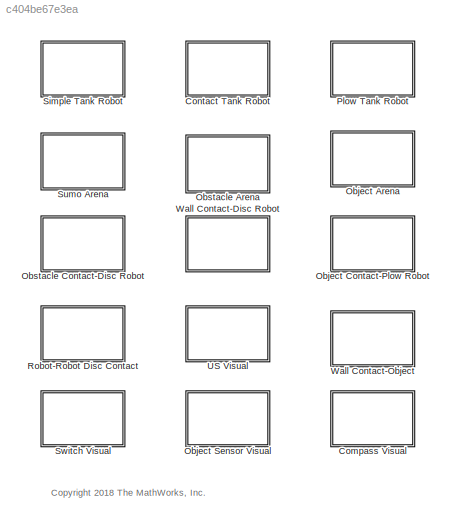
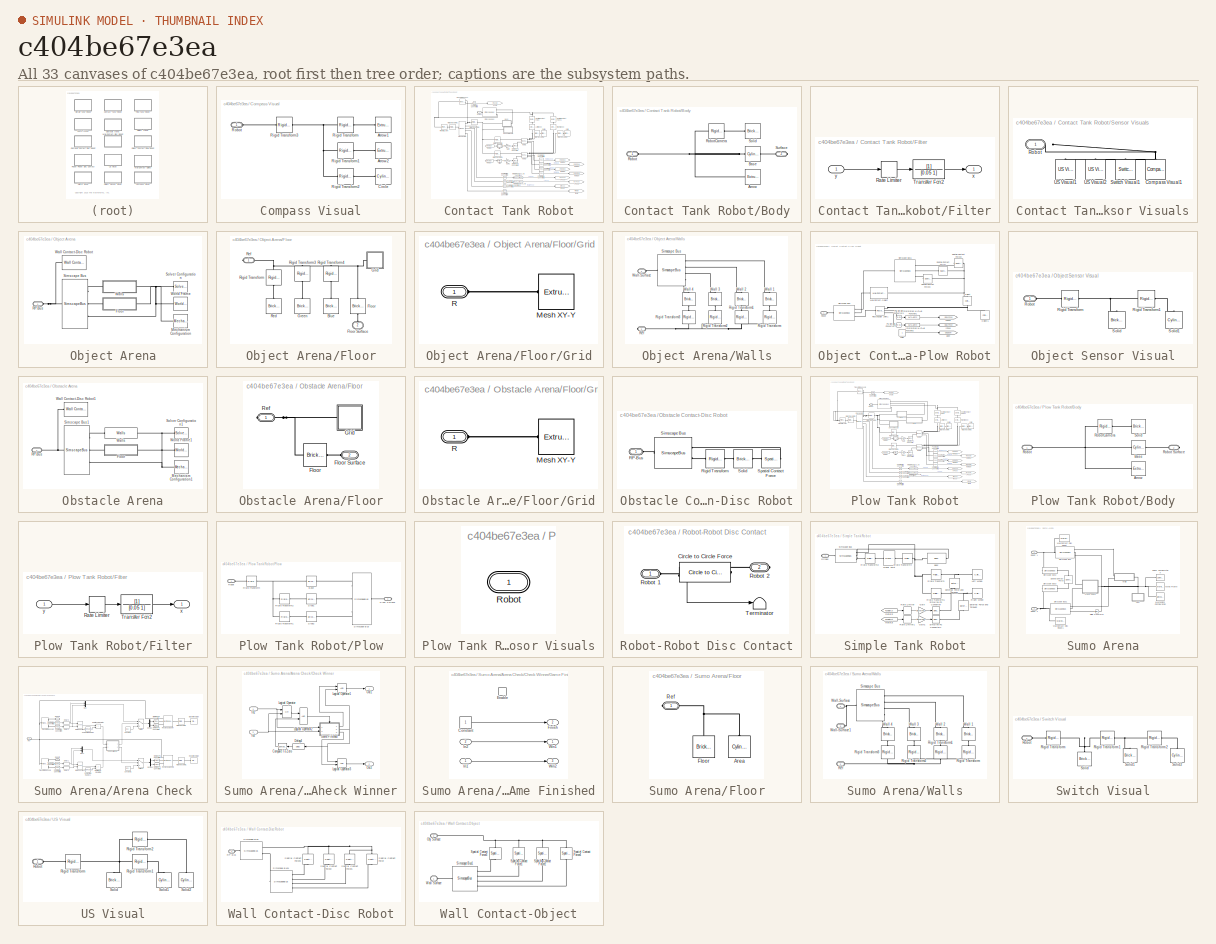
[diagram: thumbnail index - all 33 canvases of the model, root first then tree order]
MODEL slx_c404be67e3ea
KIND library
CONFIG AbsTol = auto
CONFIG EnableMultiTasking = off
CONFIG FixedStep = auto
CONFIG MaxStep = auto
CONFIG MinStep = auto
CONFIG RelTol = 1e-3
CONFIG SampleTimeConstraint = Unconstrained
CONFIG Solver = VariableStepAuto
CONFIG SolverName = VariableStepAuto
CONFIG StartTime = 0.0
CONFIG StopTime = 10.0
BLOCK [SubSystem] Compass Visual
  Ports = [0, 0, 0, 0, 0, 1]
  RequestExecContextInheritance = off
BLOCK [Reference] Compass Visual/Arrow1  REF=sm_lib/Body Elements/Extruded Solid
  Ports = [0, 0, 0, 0, 0, 0, 1]
  SourceBlock = sm_lib/Body Elements/Extruded Solid
  SourceProductBaseCode = MS
  SourceProductName = Simscape Multibody
  SourceType = Extruded Solid
BLOCK [Reference] Compass Visual/Arrow2  REF=sm_lib/Body Elements/Extruded Solid
  Ports = [0, 0, 0, 0, 0, 0, 1]
  SourceBlock = sm_lib/Body Elements/Extruded Solid
  SourceProductBaseCode = MS
  SourceProductName = Simscape Multibody
  SourceType = Extruded Solid
BLOCK [Reference] Compass Visual/Circle  REF=sm_lib/Body Elements/Cylindrical Solid
  Ports = [0, 0, 0, 0, 0, 0, 1]
  SourceBlock = sm_lib/Body Elements/Cylindrical Solid
  SourceProductBaseCode = MS
  SourceProductName = Simscape Multibody
  SourceType = Cylindrical Solid
BLOCK [Reference] Compass Visual/Rigid Transform  REF=sm_lib/Frames and
Transforms/Rigid
Transform
  Ports = [0, 0, 0, 0, 0, 1, 1]
  SourceBlock = sm_lib/Frames and\nTransforms/Rigid\nTransform
  SourceProductBaseCode = MS
  SourceProductName = Simscape Multibody
  SourceType = Rigid\nTransform
BLOCK [Reference] Compass Visual/Rigid Transform1  REF=sm_lib/Frames and
Transforms/Rigid
Transform
  Ports = [0, 0, 0, 0, 0, 1, 1]
  SourceBlock = sm_lib/Frames and\nTransforms/Rigid\nTransform
  SourceProductBaseCode = MS
  SourceProductName = Simscape Multibody
  SourceType = Rigid\nTransform
BLOCK [Reference] Compass Visual/Rigid Transform2  REF=sm_lib/Frames and
Transforms/Rigid
Transform
  Ports = [0, 0, 0, 0, 0, 1, 1]
  SourceBlock = sm_lib/Frames and\nTransforms/Rigid\nTransform
  SourceProductBaseCode = MS
  SourceProductName = Simscape Multibody
  SourceType = Rigid\nTransform
BLOCK [Reference] Compass Visual/Rigid Transform3  REF=sm_lib/Frames and
Transforms/Rigid
Transform
  Ports = [0, 0, 0, 0, 0, 1, 1]
  SourceBlock = sm_lib/Frames and\nTransforms/Rigid\nTransform
  SourceProductBaseCode = MS
  SourceProductName = Simscape Multibody
  SourceType = Rigid\nTransform
BLOCK [PMIOPort] Compass Visual/Robot
  Side = Left
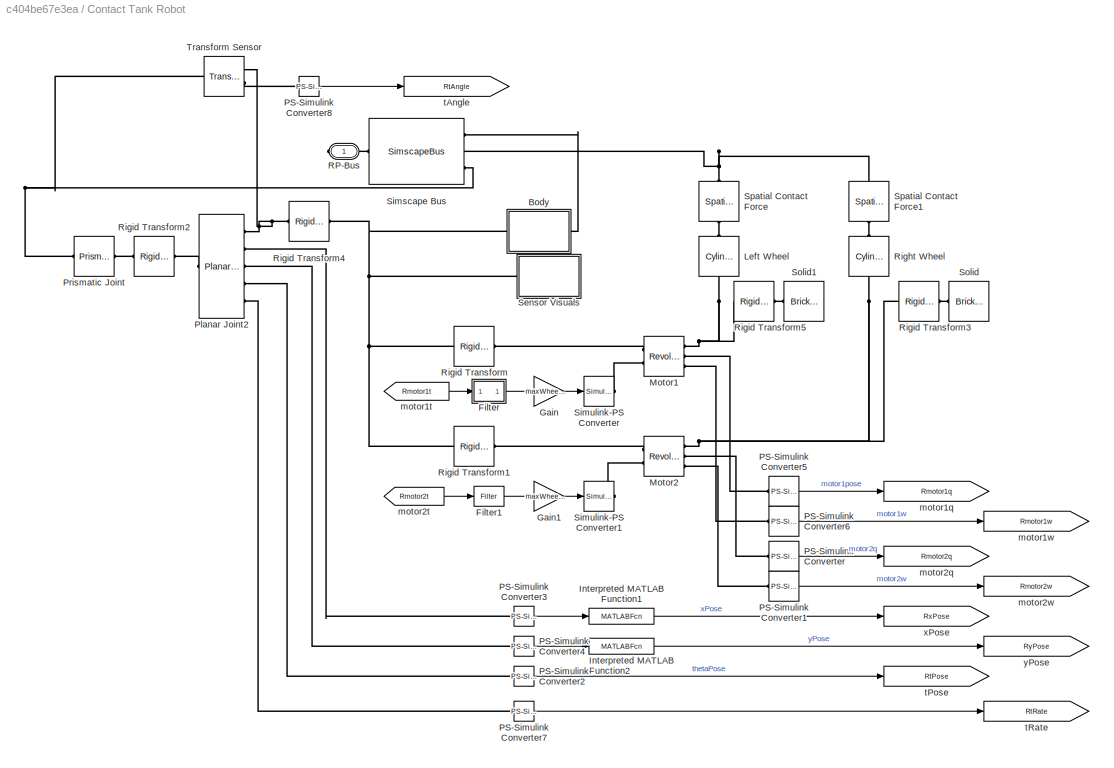
BLOCK [SubSystem] Contact Tank Robot
  Ports = [0, 0, 0, 0, 0, 0, 1]
  RequestExecContextInheritance = off
BLOCK [SubSystem] Contact Tank Robot/Body
  Ports = [0, 0, 0, 0, 0, 1, 1]
  RequestExecContextInheritance = off
BLOCK [Reference] Contact Tank Robot/Body/Arrow  REF=sm_lib/Body Elements/Extruded Solid
  Ports = [0, 0, 0, 0, 0, 0, 1]
  SourceBlock = sm_lib/Body Elements/Extruded Solid
  SourceProductBaseCode = MS
  SourceProductName = Simscape Multibody
  SourceType = Extruded Solid
BLOCK [Reference] Contact Tank Robot/Body/Base  REF=sm_lib/Body Elements/Cylindrical Solid
  Ports = [0, 0, 0, 0, 0, 1, 1]
  SourceBlock = sm_lib/Body Elements/Cylindrical Solid
  SourceProductBaseCode = MS
  SourceProductName = Simscape Multibody
  SourceType = Cylindrical Solid
BLOCK [PMIOPort] Contact Tank Robot/Body/Robot
  Side = Left
BLOCK [Reference] Contact Tank Robot/Body/RobotCamera  REF=sm_lib/Frames and
Transforms/Rigid
Transform
  Ports = [0, 0, 0, 0, 0, 1, 1]
  SourceBlock = sm_lib/Frames and\nTransforms/Rigid\nTransform
  SourceProductBaseCode = MS
  SourceProductName = Simscape Multibody
  SourceType = Rigid\nTransform
BLOCK [Reference] Contact Tank Robot/Body/Solid  REF=sm_lib/Body Elements/Brick Solid
  Ports = [0, 0, 0, 0, 0, 0, 1]
  SourceBlock = sm_lib/Body Elements/Brick Solid
  SourceProductBaseCode = MS
  SourceProductName = Simscape Multibody
  SourceType = Brick Solid
BLOCK [PMIOPort] Contact Tank Robot/Body/Surface
  Port = 2
  Side = Right
BLOCK [SubSystem] Contact Tank Robot/Filter
  Ports = [1, 1]
  RequestExecContextInheritance = off
BLOCK [RateLimiter] Contact Tank Robot/Filter/Rate Limiter
  FallingSlewLimit = -300
  RisingSlewLimit = 300
  SampleTimeMode = inherited
BLOCK [TransferFcn] Contact Tank Robot/Filter/Transfer Fcn2
  Denominator = [0.05 1]
BLOCK [Outport] Contact Tank Robot/Filter/x
  IconDisplay = Port number
  VectorParamsAs1DForOutWhenUnconnected = off
BLOCK [Inport] Contact Tank Robot/Filter/y
  IconDisplay = Port number
BLOCK [Reference] Contact Tank Robot/Filter1  REF=$bdroot/Contact Tank Robot/Filter
  Ports = [1, 1]
  SourceBlock = $bdroot/Contact Tank Robot/Filter
  SourceType = SubSystem
BLOCK [Gain] Contact Tank Robot/Gain
  Gain = maxWheelTorque/127
  OutDataTypeStr = Inherit: Inherit via internal rule
  ParamDataTypeStr = Inherit: Inherit via internal rule
  SaturateOnIntegerOverflow = off
BLOCK [Gain] Contact Tank Robot/Gain1
  Gain = maxWheelTorque/127
  OutDataTypeStr = Inherit: Inherit via internal rule
  ParamDataTypeStr = Inherit: Inherit via internal rule
  SaturateOnIntegerOverflow = off
BLOCK [MATLABFcn] Contact Tank Robot/Interpreted MATLAB Function1
  MATLABFcn = u+floorSize(1)/2
  Ports = [1, 1]
BLOCK [MATLABFcn] Contact Tank Robot/Interpreted MATLAB Function2
  MATLABFcn = u+floorSize(2)/2
  Ports = [1, 1]
BLOCK [Reference] Contact Tank Robot/Left Wheel  REF=sm_lib/Body Elements/Cylindrical Solid
  Ports = [0, 0, 0, 0, 0, 1, 1]
  SourceBlock = sm_lib/Body Elements/Cylindrical Solid
  SourceProductBaseCode = MS
  SourceProductName = Simscape Multibody
  SourceType = Cylindrical Solid
BLOCK [Reference] Contact Tank Robot/Motor1  REF=sm_lib/Joints/Revolute Joint
  Ports = [0, 0, 0, 0, 0, 2, 3]
  SourceBlock = sm_lib/Joints/Revolute Joint
  SourceProductBaseCode = MS
  SourceProductName = Simscape Multibody
  SourceType = Revolute Joint
BLOCK [Reference] Contact Tank Robot/Motor2  REF=sm_lib/Joints/Revolute Joint
  Ports = [0, 0, 0, 0, 0, 2, 3]
  SourceBlock = sm_lib/Joints/Revolute Joint
  SourceProductBaseCode = MS
  SourceProductName = Simscape Multibody
  SourceType = Revolute Joint
BLOCK [Reference] Contact Tank Robot/PS-Simulink Converter  REF=nesl_utility/PS-Simulink
Converter
  Ports = [0, 1, 0, 0, 0, 1]
  SourceBlock = nesl_utility/PS-Simulink\nConverter
  SourceProductBaseCode = SS
  SourceProductName = Simscape
  SourceType = PS-Simulink\nConverter
BLOCK [Reference] Contact Tank Robot/PS-Simulink Converter1  REF=nesl_utility/PS-Simulink
Converter
  Ports = [0, 1, 0, 0, 0, 1]
  SourceBlock = nesl_utility/PS-Simulink\nConverter
  SourceProductBaseCode = SS
  SourceProductName = Simscape
  SourceType = PS-Simulink\nConverter
BLOCK [Reference] Contact Tank Robot/PS-Simulink Converter2  REF=nesl_utility/PS-Simulink
Converter
  Ports = [0, 1, 0, 0, 0, 1]
  SourceBlock = nesl_utility/PS-Simulink\nConverter
  SourceProductBaseCode = SS
  SourceProductName = Simscape
  SourceType = PS-Simulink\nConverter
BLOCK [Reference] Contact Tank Robot/PS-Simulink Converter3  REF=nesl_utility/PS-Simulink
Converter
  Ports = [0, 1, 0, 0, 0, 1]
  SourceBlock = nesl_utility/PS-Simulink\nConverter
  SourceProductBaseCode = SS
  SourceProductName = Simscape
  SourceType = PS-Simulink\nConverter
BLOCK [Reference] Contact Tank Robot/PS-Simulink Converter4  REF=nesl_utility/PS-Simulink
Converter
  Ports = [0, 1, 0, 0, 0, 1]
  SourceBlock = nesl_utility/PS-Simulink\nConverter
  SourceProductBaseCode = SS
  SourceProductName = Simscape
  SourceType = PS-Simulink\nConverter
BLOCK [Reference] Contact Tank Robot/PS-Simulink Converter5  REF=nesl_utility/PS-Simulink
Converter
  Ports = [0, 1, 0, 0, 0, 1]
  SourceBlock = nesl_utility/PS-Simulink\nConverter
  SourceProductBaseCode = SS
  SourceProductName = Simscape
  SourceType = PS-Simulink\nConverter
BLOCK [Reference] Contact Tank Robot/PS-Simulink Converter6  REF=nesl_utility/PS-Simulink
Converter
  Ports = [0, 1, 0, 0, 0, 1]
  SourceBlock = nesl_utility/PS-Simulink\nConverter
  SourceProductBaseCode = SS
  SourceProductName = Simscape
  SourceType = PS-Simulink\nConverter
BLOCK [Reference] Contact Tank Robot/PS-Simulink Converter7  REF=nesl_utility/PS-Simulink
Converter
  Ports = [0, 1, 0, 0, 0, 1]
  SourceBlock = nesl_utility/PS-Simulink\nConverter
  SourceProductBaseCode = SS
  SourceProductName = Simscape
  SourceType = PS-Simulink\nConverter
BLOCK [Reference] Contact Tank Robot/PS-Simulink Converter8  REF=nesl_utility/PS-Simulink
Converter
  Ports = [0, 1, 0, 0, 0, 1]
  SourceBlock = nesl_utility/PS-Simulink\nConverter
  SourceProductBaseCode = SS
  SourceProductName = Simscape
  SourceType = PS-Simulink\nConverter
BLOCK [Reference] Contact Tank Robot/Planar Joint2  REF=sm_lib/Joints/Planar Joint
  Ports = [0, 0, 0, 0, 0, 1, 5]
  SourceBlock = sm_lib/Joints/Planar Joint
  SourceProductBaseCode = MS
  SourceProductName = Simscape Multibody
  SourceType = Planar Joint
BLOCK [Reference] Contact Tank Robot/Prismatic Joint  REF=sm_lib/Joints/Prismatic
Joint
  Ports = [0, 0, 0, 0, 0, 1, 1]
  SourceBlock = sm_lib/Joints/Prismatic\nJoint
  SourceProductBaseCode = MS
  SourceProductName = Simscape Multibody
  SourceType = Prismatic\nJoint
BLOCK [PMIOPort] Contact Tank Robot/RP-Bus
  Side = Right
BLOCK [Reference] Contact Tank Robot/Right Wheel  REF=sm_lib/Body Elements/Cylindrical Solid
  Ports = [0, 0, 0, 0, 0, 1, 1]
  SourceBlock = sm_lib/Body Elements/Cylindrical Solid
  SourceProductBaseCode = MS
  SourceProductName = Simscape Multibody
  SourceType = Cylindrical Solid
BLOCK [Reference] Contact Tank Robot/Rigid Transform  REF=sm_lib/Frames and
Transforms/Rigid
Transform
  Ports = [0, 0, 0, 0, 0, 1, 1]
  SourceBlock = sm_lib/Frames and\nTransforms/Rigid\nTransform
  SourceProductBaseCode = MS
  SourceProductName = Simscape Multibody
  SourceType = Rigid\nTransform
BLOCK [Reference] Contact Tank Robot/Rigid Transform1  REF=sm_lib/Frames and
Transforms/Rigid
Transform
  Ports = [0, 0, 0, 0, 0, 1, 1]
  SourceBlock = sm_lib/Frames and\nTransforms/Rigid\nTransform
  SourceProductBaseCode = MS
  SourceProductName = Simscape Multibody
  SourceType = Rigid\nTransform
BLOCK [Reference] Contact Tank Robot/Rigid Transform2  REF=sm_lib/Frames and
Transforms/Rigid
Transform
  Ports = [0, 0, 0, 0, 0, 1, 1]
  SourceBlock = sm_lib/Frames and\nTransforms/Rigid\nTransform
  SourceProductBaseCode = MS
  SourceProductName = Simscape Multibody
  SourceType = Rigid\nTransform
BLOCK [Reference] Contact Tank Robot/Rigid Transform3  REF=sm_lib/Frames and
Transforms/Rigid
Transform
  Ports = [0, 0, 0, 0, 0, 1, 1]
  SourceBlock = sm_lib/Frames and\nTransforms/Rigid\nTransform
  SourceProductBaseCode = MS
  SourceProductName = Simscape Multibody
  SourceType = Rigid\nTransform
BLOCK [Reference] Contact Tank Robot/Rigid Transform4  REF=sm_lib/Frames and
Transforms/Rigid
Transform
  Ports = [0, 0, 0, 0, 0, 1, 1]
  SourceBlock = sm_lib/Frames and\nTransforms/Rigid\nTransform
  SourceProductBaseCode = MS
  SourceProductName = Simscape Multibody
  SourceType = Rigid\nTransform
BLOCK [Reference] Contact Tank Robot/Rigid Transform5  REF=sm_lib/Frames and
Transforms/Rigid
Transform
  Ports = [0, 0, 0, 0, 0, 1, 1]
  SourceBlock = sm_lib/Frames and\nTransforms/Rigid\nTransform
  SourceProductBaseCode = MS
  SourceProductName = Simscape Multibody
  SourceType = Rigid\nTransform
BLOCK [SubSystem] Contact Tank Robot/Sensor Visuals
  Ports = [0, 0, 0, 0, 0, 1]
  RequestExecContextInheritance = off
BLOCK [Reference] Contact Tank Robot/Sensor Visuals/Compass Visual1  REF=$bdroot/Compass Visual
  Ports = [0, 0, 0, 0, 0, 1]
  SourceBlock = $bdroot/Compass Visual
  SourceType = RP Compass Visual
BLOCK [PMIOPort] Contact Tank Robot/Sensor Visuals/Robot
  Side = Left
BLOCK [Reference] Contact Tank Robot/Sensor Visuals/Switch Visual1  REF=$bdroot/Switch Visual
  Ports = [0, 0, 0, 0, 0, 1]
  SourceBlock = $bdroot/Switch Visual
  SourceType = RP Switch Visual
BLOCK [Reference] Contact Tank Robot/Sensor Visuals/US Visual1  REF=$bdroot/US Visual
  Ports = [0, 0, 0, 0, 0, 1]
  SourceBlock = $bdroot/US Visual
  SourceType = RP US Visual
BLOCK [Reference] Contact Tank Robot/Sensor Visuals/US Visual2  REF=$bdroot/US Visual
  Ports = [0, 0, 0, 0, 0, 1]
  SourceBlock = $bdroot/US Visual
  SourceType = RP US Visual
BLOCK [SimscapeBus] Contact Tank Robot/Simscape Bus
  HierarchyStrings = RobotSurface;FloorSurface;Ref
  Ports = [0, 0, 0, 0, 0, 3, 1]
BLOCK [Reference] Contact Tank Robot/Simulink-PS Converter  REF=nesl_utility/Simulink-PS
Converter
  Ports = [1, 0, 0, 0, 0, 0, 1]
  SourceBlock = nesl_utility/Simulink-PS\nConverter
  SourceProductBaseCode = SS
  SourceProductName = Simscape
  SourceType = Simulink-PS\nConverter
BLOCK [Reference] Contact Tank Robot/Simulink-PS Converter1  REF=nesl_utility/Simulink-PS
Converter
  Ports = [1, 0, 0, 0, 0, 0, 1]
  SourceBlock = nesl_utility/Simulink-PS\nConverter
  SourceProductBaseCode = SS
  SourceProductName = Simscape
  SourceType = Simulink-PS\nConverter
BLOCK [Reference] Contact Tank Robot/Solid  REF=sm_lib/Body Elements/Brick Solid
  Ports = [0, 0, 0, 0, 0, 0, 1]
  SourceBlock = sm_lib/Body Elements/Brick Solid
  SourceProductBaseCode = MS
  SourceProductName = Simscape Multibody
  SourceType = Brick Solid
BLOCK [Reference] Contact Tank Robot/Solid1  REF=sm_lib/Body Elements/Brick Solid
  Ports = [0, 0, 0, 0, 0, 0, 1]
  SourceBlock = sm_lib/Body Elements/Brick Solid
  SourceProductBaseCode = MS
  SourceProductName = Simscape Multibody
  SourceType = Brick Solid
BLOCK [Reference] Contact Tank Robot/Spatial Contact Force  REF=sm_lib/Forces and
Torques/Spatial
Contact Force
  Ports = [0, 0, 0, 0, 0, 1, 1]
  SourceBlock = sm_lib/Forces and\nTorques/Spatial\nContact Force
  SourceProductBaseCode = MS
  SourceProductName = Simscape Multibody
  SourceType = Spatial\nContact Force
BLOCK [Reference] Contact Tank Robot/Spatial Contact Force1  REF=sm_lib/Forces and
Torques/Spatial
Contact Force
  Ports = [0, 0, 0, 0, 0, 1, 1]
  SourceBlock = sm_lib/Forces and\nTorques/Spatial\nContact Force
  SourceProductBaseCode = MS
  SourceProductName = Simscape Multibody
  SourceType = Spatial\nContact Force
BLOCK [Reference] Contact Tank Robot/Transform Sensor  REF=sm_lib/Frames and
Transforms/Transform
Sensor
  Ports = [0, 0, 0, 0, 0, 1, 2]
  SourceBlock = sm_lib/Frames and\nTransforms/Transform\nSensor
  SourceProductBaseCode = MS
  SourceProductName = Simscape Multibody
  SourceType = Transform\nSensor
BLOCK [Goto] Contact Tank Robot/motor1q
  GotoTag = Rmotor1q
  TagVisibility = global
BLOCK [From] Contact Tank Robot/motor1t
  GotoTag = Rmotor1t
  TagVisibility = global
BLOCK [Goto] Contact Tank Robot/motor1w
  GotoTag = Rmotor1w
  TagVisibility = global
BLOCK [Goto] Contact Tank Robot/motor2q
  GotoTag = Rmotor2q
  TagVisibility = global
BLOCK [From] Contact Tank Robot/motor2t
  GotoTag = Rmotor2t
  TagVisibility = global
BLOCK [Goto] Contact Tank Robot/motor2w
  GotoTag = Rmotor2w
  TagVisibility = global
BLOCK [Goto] Contact Tank Robot/tAngle
  GotoTag = RtAngle
  TagVisibility = global
BLOCK [Goto] Contact Tank Robot/tPose
  GotoTag = RtPose
  TagVisibility = global
BLOCK [Goto] Contact Tank Robot/tRate
  GotoTag = RtRate
  TagVisibility = global
BLOCK [Goto] Contact Tank Robot/xPose
  GotoTag = RxPose
  TagVisibility = global
BLOCK [Goto] Contact Tank Robot/yPose
  GotoTag = RyPose
  TagVisibility = global
BLOCK [SubSystem] Object Arena
  Ports = [0, 0, 0, 0, 0, 1]
  RequestExecContextInheritance = off
BLOCK [SubSystem] Object Arena/Floor
  Ports = [0, 0, 0, 0, 0, 1, 1]
  RequestExecContextInheritance = off
BLOCK [Reference] Object Arena/Floor/Blue  REF=sm_lib/Body Elements/Brick Solid
  Ports = [0, 0, 0, 0, 0, 0, 1]
  SourceBlock = sm_lib/Body Elements/Brick Solid
  SourceProductBaseCode = MS
  SourceProductName = Simscape Multibody
  SourceType = Brick Solid
BLOCK [Reference] Object Arena/Floor/Floor  REF=sm_lib/Body Elements/Brick Solid
  Ports = [0, 0, 0, 0, 0, 1, 1]
  SourceBlock = sm_lib/Body Elements/Brick Solid
  SourceProductBaseCode = MS
  SourceProductName = Simscape Multibody
  SourceType = Brick Solid
BLOCK [PMIOPort] Object Arena/Floor/Floor Surface
  Port = 2
  Side = Left
BLOCK [Reference] Object Arena/Floor/Green  REF=sm_lib/Body Elements/Brick Solid
  Ports = [0, 0, 0, 0, 0, 0, 1]
  SourceBlock = sm_lib/Body Elements/Brick Solid
  SourceProductBaseCode = MS
  SourceProductName = Simscape Multibody
  SourceType = Brick Solid
BLOCK [SubSystem] Object Arena/Floor/Grid
  Ports = [0, 0, 0, 0, 0, 1]
  RequestExecContextInheritance = off
BLOCK [Reference] Object Arena/Floor/Grid/Mesh XY-Y  REF=sm_lib/Body Elements/Extruded Solid
  Ports = [0, 0, 0, 0, 0, 0, 1]
  SourceBlock = sm_lib/Body Elements/Extruded Solid
  SourceProductBaseCode = MS
  SourceProductName = Simscape Multibody
  SourceType = Extruded Solid
BLOCK [PMIOPort] Object Arena/Floor/Grid/R
  Side = Left
BLOCK [Reference] Object Arena/Floor/Red  REF=sm_lib/Body Elements/Brick Solid
  Ports = [0, 0, 0, 0, 0, 0, 1]
  SourceBlock = sm_lib/Body Elements/Brick Solid
  SourceProductBaseCode = MS
  SourceProductName = Simscape Multibody
  SourceType = Brick Solid
BLOCK [PMIOPort] Object Arena/Floor/Ref
  Side = Right
BLOCK [Reference] Object Arena/Floor/Rigid Transform  REF=sm_lib/Frames and
Transforms/Rigid
Transform
  Ports = [0, 0, 0, 0, 0, 1, 1]
  SourceBlock = sm_lib/Frames and\nTransforms/Rigid\nTransform
  SourceProductBaseCode = MS
  SourceProductName = Simscape Multibody
  SourceType = Rigid\nTransform
BLOCK [Reference] Object Arena/Floor/Rigid Transform3  REF=sm_lib/Frames and
Transforms/Rigid
Transform
  Ports = [0, 0, 0, 0, 0, 1, 1]
  SourceBlock = sm_lib/Frames and\nTransforms/Rigid\nTransform
  SourceProductBaseCode = MS
  SourceProductName = Simscape Multibody
  SourceType = Rigid\nTransform
BLOCK [Reference] Object Arena/Floor/Rigid Transform4  REF=sm_lib/Frames and
Transforms/Rigid
Transform
  Ports = [0, 0, 0, 0, 0, 1, 1]
  SourceBlock = sm_lib/Frames and\nTransforms/Rigid\nTransform
  SourceProductBaseCode = MS
  SourceProductName = Simscape Multibody
  SourceType = Rigid\nTransform
BLOCK [Reference] Object Arena/Mechanism Configuration  REF=sm_lib/Utilities/Mechanism
Configuration
  Ports = [0, 0, 0, 0, 0, 0, 1]
  SourceBlock = sm_lib/Utilities/Mechanism\nConfiguration
  SourceProductBaseCode = MS
  SourceProductName = Simscape Multibody
  SourceType = Mechanism\nConfiguration
BLOCK [PMIOPort] Object Arena/RP-Bus
  Side = Left
BLOCK [SimscapeBus] Object Arena/Simscape Bus
  HierarchyStrings = WallSurface;FloorSurface;Ref
  Ports = [0, 0, 0, 0, 0, 3, 1]
BLOCK [Reference] Object Arena/Solver Configuration  REF=nesl_utility/Solver
Configuration
  Ports = [0, 0, 0, 0, 0, 0, 1]
  SourceBlock = nesl_utility/Solver\nConfiguration
  SourceProductBaseCode = SS
  SourceProductName = Simscape
  SourceType = Solver\nConfiguration
BLOCK [Reference] Object Arena/Wall Contact-Disc Robot  REF=$bdroot/Wall Contact-Disc Robot
  Ports = [0, 0, 0, 0, 0, 1]
  SourceBlock = $bdroot/Wall Contact-Disc Robot
  SourceType = RP Disc-Walls
BLOCK [SubSystem] Object Arena/Walls
  Ports = [0, 0, 0, 0, 0, 1, 1]
  RequestExecContextInheritance = off
BLOCK [PMIOPort] Object Arena/Walls/Ref
  Port = 2
  Side = Right
BLOCK [Reference] Object Arena/Walls/Rigid Transform  REF=sm_lib/Frames and
Transforms/Rigid
Transform
  Ports = [0, 0, 0, 0, 0, 1, 1]
  SourceBlock = sm_lib/Frames and\nTransforms/Rigid\nTransform
  SourceProductBaseCode = MS
  SourceProductName = Simscape Multibody
  SourceType = Rigid\nTransform
BLOCK [Reference] Object Arena/Walls/Rigid Transform1  REF=sm_lib/Frames and
Transforms/Rigid
Transform
  Ports = [0, 0, 0, 0, 0, 1, 1]
  SourceBlock = sm_lib/Frames and\nTransforms/Rigid\nTransform
  SourceProductBaseCode = MS
  SourceProductName = Simscape Multibody
  SourceType = Rigid\nTransform
BLOCK [Reference] Object Arena/Walls/Rigid Transform2  REF=sm_lib/Frames and
Transforms/Rigid
Transform
  Ports = [0, 0, 0, 0, 0, 1, 1]
  SourceBlock = sm_lib/Frames and\nTransforms/Rigid\nTransform
  SourceProductBaseCode = MS
  SourceProductName = Simscape Multibody
  SourceType = Rigid\nTransform
BLOCK [Reference] Object Arena/Walls/Rigid Transform3  REF=sm_lib/Frames and
Transforms/Rigid
Transform
  Ports = [0, 0, 0, 0, 0, 1, 1]
  SourceBlock = sm_lib/Frames and\nTransforms/Rigid\nTransform
  SourceProductBaseCode = MS
  SourceProductName = Simscape Multibody
  SourceType = Rigid\nTransform
BLOCK [SimscapeBus] Object Arena/Walls/Simscape Bus
  HierarchyStrings = Wall1Surface;Wall2Surface;Wall3Surface;Wall4Surface
  Ports = [0, 0, 0, 0, 0, 4, 1]
BLOCK [Reference] Object Arena/Walls/Wall 1  REF=sm_lib/Body Elements/Brick Solid
  Ports = [0, 0, 0, 0, 0, 1, 1]
  SourceBlock = sm_lib/Body Elements/Brick Solid
  SourceProductBaseCode = MS
  SourceProductName = Simscape Multibody
  SourceType = Brick Solid
BLOCK [Reference] Object Arena/Walls/Wall 2  REF=sm_lib/Body Elements/Brick Solid
  Ports = [0, 0, 0, 0, 0, 1, 1]
  SourceBlock = sm_lib/Body Elements/Brick Solid
  SourceProductBaseCode = MS
  SourceProductName = Simscape Multibody
  SourceType = Brick Solid
BLOCK [Reference] Object Arena/Walls/Wall 3  REF=sm_lib/Body Elements/Brick Solid
  Ports = [0, 0, 0, 0, 0, 1, 1]
  SourceBlock = sm_lib/Body Elements/Brick Solid
  SourceProductBaseCode = MS
  SourceProductName = Simscape Multibody
  SourceType = Brick Solid
BLOCK [Reference] Object Arena/Walls/Wall 4  REF=sm_lib/Body Elements/Brick Solid
  Ports = [0, 0, 0, 0, 0, 1, 1]
  SourceBlock = sm_lib/Body Elements/Brick Solid
  SourceProductBaseCode = MS
  SourceProductName = Simscape Multibody
  SourceType = Brick Solid
BLOCK [PMIOPort] Object Arena/Walls/Wall-Surface
  Side = Left
BLOCK [Reference] Object Arena/World Frame  REF=sm_lib/Frames and
Transforms/World Frame
  Ports = [0, 0, 0, 0, 0, 0, 1]
  SourceBlock = sm_lib/Frames and\nTransforms/World Frame
  SourceProductBaseCode = MS
  SourceProductName = Simscape Multibody
  SourceType = World Frame
BLOCK [SubSystem] Object Contact-Plow Robot
  Ports = [0, 0, 0, 0, 0, 1]
  RequestExecContextInheritance = off
BLOCK [MATLABFcn] Object Contact-Plow Robot/Interpreted MATLAB Function1
  MATLABFcn = u+length/2
  Ports = [1, 1]
BLOCK [MATLABFcn] Object Contact-Plow Robot/Interpreted MATLAB Function2
  MATLABFcn = u+width/2
  Ports = [1, 1]
BLOCK [Reference] Object Contact-Plow Robot/Object  REF=sm_lib/Body Elements/Cylindrical Solid
  Ports = [0, 0, 0, 0, 0, 1, 1]
  SourceBlock = sm_lib/Body Elements/Cylindrical Solid
  SourceProductBaseCode = MS
  SourceProductName = Simscape Multibody
  SourceType = Cylindrical Solid
BLOCK [Reference] Object Contact-Plow Robot/Object1  REF=sm_lib/Body Elements/Cylindrical Solid
  Ports = [0, 0, 0, 0, 0, 0, 1]
  SourceBlock = sm_lib/Body Elements/Cylindrical Solid
  SourceProductBaseCode = MS
  SourceProductName = Simscape Multibody
  SourceType = Cylindrical Solid
BLOCK [Reference] Object Contact-Plow Robot/PS-Simulink Converter1  REF=nesl_utility/PS-Simulink
Converter
  Ports = [0, 1, 0, 0, 0, 1]
  SourceBlock = nesl_utility/PS-Simulink\nConverter
  SourceProductBaseCode = SS
  SourceProductName = Simscape
  SourceType = PS-Simulink\nConverter
BLOCK [Reference] Object Contact-Plow Robot/PS-Simulink Converter3  REF=nesl_utility/PS-Simulink
Converter
  Ports = [0, 1, 0, 0, 0, 1]
  SourceBlock = nesl_utility/PS-Simulink\nConverter
  SourceProductBaseCode = SS
  SourceProductName = Simscape
  SourceType = PS-Simulink\nConverter
BLOCK [Reference] Object Contact-Plow Robot/Rectangular Joint1  REF=sm_lib/Joints/Rectangular
Joint
  Ports = [0, 0, 0, 0, 0, 1, 3]
  SourceBlock = sm_lib/Joints/Rectangular\nJoint
  SourceProductBaseCode = MS
  SourceProductName = Simscape Multibody
  SourceType = Rectangular\nJoint
BLOCK [PMIOPort] Object Contact-Plow Robot/Robot
  Side = Left
BLOCK [SimscapeBus] Object Contact-Plow Robot/Simscape Bus
  HierarchyStrings = PlowSurface;WallSurface;Ref
  Ports = [0, 0, 0, 0, 0, 3, 1]
BLOCK [SimscapeBus] Object Contact-Plow Robot/Simscape Bus1
  HierarchyStrings = Base;Side1;Side2
  Ports = [0, 0, 0, 0, 0, 3, 1]
BLOCK [Reference] Object Contact-Plow Robot/Spatial Contact Force1  REF=sm_lib/Forces and
Torques/Spatial
Contact Force
  Ports = [0, 0, 0, 0, 0, 1, 1]
  SourceBlock = sm_lib/Forces and\nTorques/Spatial\nContact Force
  SourceProductBaseCode = MS
  SourceProductName = Simscape Multibody
  SourceType = Spatial\nContact Force
BLOCK [Reference] Object Contact-Plow Robot/Spatial Contact Force2  REF=sm_lib/Forces and
Torques/Spatial
Contact Force
  Ports = [0, 0, 0, 0, 0, 1, 1]
  SourceBlock = sm_lib/Forces and\nTorques/Spatial\nContact Force
  SourceProductBaseCode = MS
  SourceProductName = Simscape Multibody
  SourceType = Spatial\nContact Force
BLOCK [Reference] Object Contact-Plow Robot/Spatial Contact Force3  REF=sm_lib/Forces and
Torques/Spatial
Contact Force
  Ports = [0, 0, 0, 0, 0, 1, 1]
  SourceBlock = sm_lib/Forces and\nTorques/Spatial\nContact Force
  SourceProductBaseCode = MS
  SourceProductName = Simscape Multibody
  SourceType = Spatial\nContact Force
BLOCK [Reference] Object Contact-Plow Robot/Wall Contact-Object  REF=$bdroot/Wall Contact-Object
  Ports = [0, 0, 0, 0, 0, 1, 1]
  SourceBlock = $bdroot/Wall Contact-Object
  SourceType = RP Disc-Walls
BLOCK [Constant] Object Contact-Plow Robot/color
BLOCK [Goto] Object Contact-Plow Robot/label
  GotoTag = Obj1label
  TagVisibility = global
BLOCK [Goto] Object Contact-Plow Robot/xPose
  GotoTag = Obj1xPose
  TagVisibility = global
BLOCK [Goto] Object Contact-Plow Robot/yPose
  GotoTag = Obj1yPose
  TagVisibility = global
BLOCK [SubSystem] Object Sensor Visual
  Ports = [0, 0, 0, 0, 0, 1]
  RequestExecContextInheritance = off
BLOCK [Reference] Object Sensor Visual/Rigid Transform  REF=sm_lib/Frames and
Transforms/Rigid
Transform
  Ports = [0, 0, 0, 0, 0, 1, 1]
  SourceBlock = sm_lib/Frames and\nTransforms/Rigid\nTransform
  SourceProductBaseCode = MS
  SourceProductName = Simscape Multibody
  SourceType = Rigid\nTransform
BLOCK [Reference] Object Sensor Visual/Rigid Transform1  REF=sm_lib/Frames and
Transforms/Rigid
Transform
  Ports = [0, 0, 0, 0, 0, 1, 1]
  SourceBlock = sm_lib/Frames and\nTransforms/Rigid\nTransform
  SourceProductBaseCode = MS
  SourceProductName = Simscape Multibody
  SourceType = Rigid\nTransform
BLOCK [PMIOPort] Object Sensor Visual/Robot
  Side = Left
BLOCK [Reference] Object Sensor Visual/Solid  REF=sm_lib/Body Elements/Brick Solid
  Ports = [0, 0, 0, 0, 0, 0, 1]
  SourceBlock = sm_lib/Body Elements/Brick Solid
  SourceProductBaseCode = MS
  SourceProductName = Simscape Multibody
  SourceType = Brick Solid
BLOCK [Reference] Object Sensor Visual/Solid1  REF=sm_lib/Body Elements/Cylindrical Solid
  Ports = [0, 0, 0, 0, 0, 0, 1]
  SourceBlock = sm_lib/Body Elements/Cylindrical Solid
  SourceProductBaseCode = MS
  SourceProductName = Simscape Multibody
  SourceType = Cylindrical Solid
BLOCK [SubSystem] Obstacle Arena
  Ports = [0, 0, 0, 0, 0, 1]
  RequestExecContextInheritance = off
BLOCK [SubSystem] Obstacle Arena/Floor
  Ports = [0, 0, 0, 0, 0, 1, 1]
  RequestExecContextInheritance = off
BLOCK [Reference] Obstacle Arena/Floor/Floor  REF=sm_lib/Body Elements/Brick Solid
  Ports = [0, 0, 0, 0, 0, 1, 1]
  SourceBlock = sm_lib/Body Elements/Brick Solid
  SourceProductBaseCode = MS
  SourceProductName = Simscape Multibody
  SourceType = Brick Solid
BLOCK [PMIOPort] Obstacle Arena/Floor/Floor Surface
  Port = 2
  Side = Left
BLOCK [SubSystem] Obstacle Arena/Floor/Grid
  Ports = [0, 0, 0, 0, 0, 1]
  RequestExecContextInheritance = off
BLOCK [Reference] Obstacle Arena/Floor/Grid/Mesh XY-Y  REF=sm_lib/Body Elements/Extruded Solid
  Ports = [0, 0, 0, 0, 0, 0, 1]
  SourceBlock = sm_lib/Body Elements/Extruded Solid
  SourceProductBaseCode = MS
  SourceProductName = Simscape Multibody
  SourceType = Extruded Solid
BLOCK [PMIOPort] Obstacle Arena/Floor/Grid/R
  Side = Left
BLOCK [PMIOPort] Obstacle Arena/Floor/Ref
  Side = Right
BLOCK [Reference] Obstacle Arena/Mechanism Configuration1  REF=sm_lib/Utilities/Mechanism
Configuration
  Ports = [0, 0, 0, 0, 0, 0, 1]
  SourceBlock = sm_lib/Utilities/Mechanism\nConfiguration
  SourceProductBaseCode = MS
  SourceProductName = Simscape Multibody
  SourceType = Mechanism\nConfiguration
BLOCK [PMIOPort] Obstacle Arena/RP-Bus
  Side = Left
BLOCK [SimscapeBus] Obstacle Arena/Simscape Bus1
  HierarchyStrings = WallSurface;FloorSurface;Ref
  Ports = [0, 0, 0, 0, 0, 3, 1]
BLOCK [Reference] Obstacle Arena/Solver Configuration1  REF=nesl_utility/Solver
Configuration
  Ports = [0, 0, 0, 0, 0, 0, 1]
  SourceBlock = nesl_utility/Solver\nConfiguration
  SourceProductBaseCode = SS
  SourceProductName = Simscape
  SourceType = Solver\nConfiguration
BLOCK [Reference] Obstacle Arena/Wall Contact-Disc Robot1  REF=$bdroot/Wall Contact-Disc Robot
  Ports = [0, 0, 0, 0, 0, 1]
  SourceBlock = $bdroot/Wall Contact-Disc Robot
  SourceType = RP Disc-Walls
BLOCK [Reference] Obstacle Arena/Walls  REF=$bdroot/Object Arena/Walls
  Ports = [0, 0, 0, 0, 0, 1, 1]
  SourceBlock = $bdroot/Object Arena/Walls
  SourceType = RP Disc-Walls
BLOCK [Reference] Obstacle Arena/World Frame1  REF=sm_lib/Frames and
Transforms/World Frame
  Ports = [0, 0, 0, 0, 0, 0, 1]
  SourceBlock = sm_lib/Frames and\nTransforms/World Frame
  SourceProductBaseCode = MS
  SourceProductName = Simscape Multibody
  SourceType = World Frame
BLOCK [SubSystem] Obstacle Contact-Disc Robot
  Ports = [0, 0, 0, 0, 0, 1]
  RequestExecContextInheritance = off
BLOCK [PMIOPort] Obstacle Contact-Disc Robot/RP-Bus
  Side = Left
BLOCK [Reference] Obstacle Contact-Disc Robot/Rigid Transform  REF=sm_lib/Frames and
Transforms/Rigid
Transform
  Ports = [0, 0, 0, 0, 0, 1, 1]
  SourceBlock = sm_lib/Frames and\nTransforms/Rigid\nTransform
  SourceProductBaseCode = MS
  SourceProductName = Simscape Multibody
  SourceType = Rigid\nTransform
BLOCK [SimscapeBus] Obstacle Contact-Disc Robot/Simscape Bus
  HierarchyStrings = RobotSurface;Ref
  Ports = [0, 0, 0, 0, 0, 2, 1]
BLOCK [Reference] Obstacle Contact-Disc Robot/Solid  REF=sm_lib/Body Elements/Brick Solid
  Ports = [0, 0, 0, 0, 0, 1, 1]
  SourceBlock = sm_lib/Body Elements/Brick Solid
  SourceProductBaseCode = MS
  SourceProductName = Simscape Multibody
  SourceType = Brick Solid
BLOCK [Reference] Obstacle Contact-Disc Robot/Spatial Contact Force  REF=sm_lib/Forces and
Torques/Spatial
Contact Force
  Ports = [0, 0, 0, 0, 0, 1, 1]
  SourceBlock = sm_lib/Forces and\nTorques/Spatial\nContact Force
  SourceProductBaseCode = MS
  SourceProductName = Simscape Multibody
  SourceType = Spatial\nContact Force
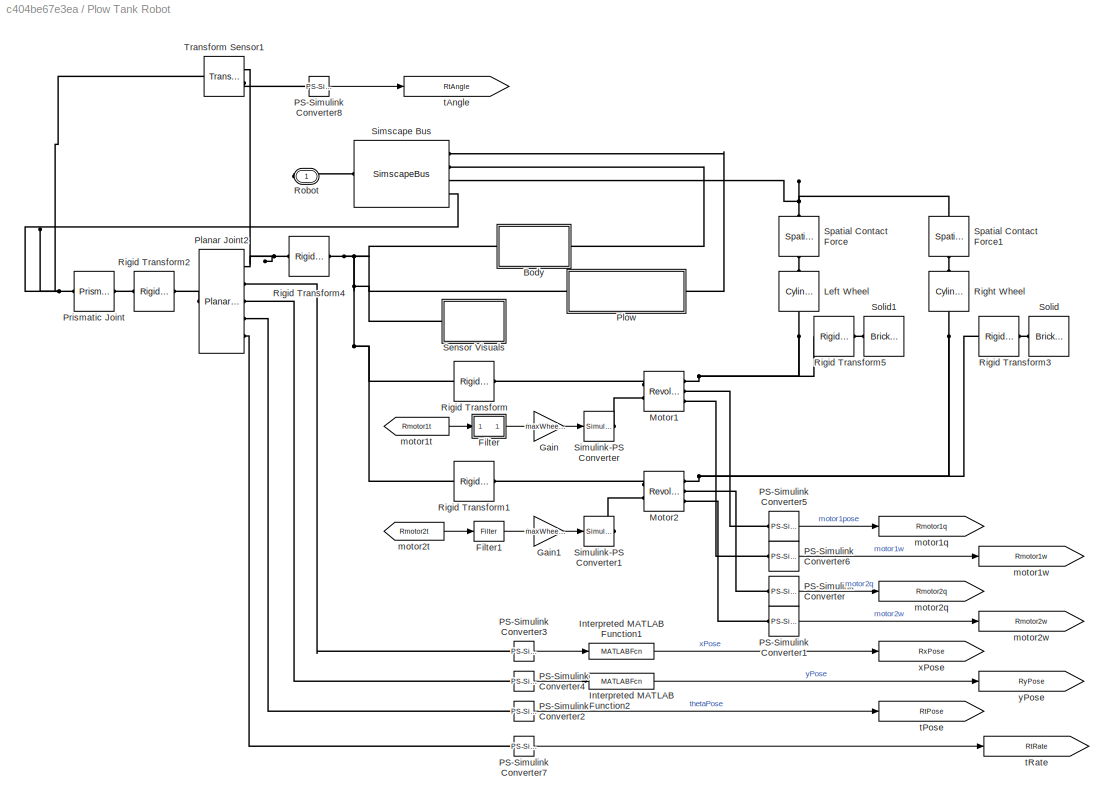
BLOCK [SubSystem] Plow Tank Robot
  Ports = [0, 0, 0, 0, 0, 0, 1]
  RequestExecContextInheritance = off
BLOCK [SubSystem] Plow Tank Robot/Body
  Ports = [0, 0, 0, 0, 0, 1, 1]
  RequestExecContextInheritance = off
BLOCK [Reference] Plow Tank Robot/Body/Arrow  REF=sm_lib/Body Elements/Extruded Solid
  Ports = [0, 0, 0, 0, 0, 0, 1]
  SourceBlock = sm_lib/Body Elements/Extruded Solid
  SourceProductBaseCode = MS
  SourceProductName = Simscape Multibody
  SourceType = Extruded Solid
BLOCK [Reference] Plow Tank Robot/Body/Base  REF=sm_lib/Body Elements/Cylindrical Solid
  Ports = [0, 0, 0, 0, 0, 1, 1]
  SourceBlock = sm_lib/Body Elements/Cylindrical Solid
  SourceProductBaseCode = MS
  SourceProductName = Simscape Multibody
  SourceType = Cylindrical Solid
BLOCK [PMIOPort] Plow Tank Robot/Body/Robot
  Side = Left
BLOCK [PMIOPort] Plow Tank Robot/Body/Robot Surface
  Port = 2
  Side = Right
BLOCK [Reference] Plow Tank Robot/Body/RobotCamera  REF=sm_lib/Frames and
Transforms/Rigid
Transform
  Ports = [0, 0, 0, 0, 0, 1, 1]
  SourceBlock = sm_lib/Frames and\nTransforms/Rigid\nTransform
  SourceProductBaseCode = MS
  SourceProductName = Simscape Multibody
  SourceType = Rigid\nTransform
BLOCK [Reference] Plow Tank Robot/Body/Solid  REF=sm_lib/Body Elements/Brick Solid
  Ports = [0, 0, 0, 0, 0, 0, 1]
  SourceBlock = sm_lib/Body Elements/Brick Solid
  SourceProductBaseCode = MS
  SourceProductName = Simscape Multibody
  SourceType = Brick Solid
BLOCK [SubSystem] Plow Tank Robot/Filter
  Ports = [1, 1]
  RequestExecContextInheritance = off
BLOCK [RateLimiter] Plow Tank Robot/Filter/Rate Limiter
  FallingSlewLimit = -300
  RisingSlewLimit = 300
  SampleTimeMode = inherited
BLOCK [TransferFcn] Plow Tank Robot/Filter/Transfer Fcn2
  Denominator = [0.05 1]
BLOCK [Outport] Plow Tank Robot/Filter/x
  IconDisplay = Port number
  VectorParamsAs1DForOutWhenUnconnected = off
BLOCK [Inport] Plow Tank Robot/Filter/y
  IconDisplay = Port number
BLOCK [Reference] Plow Tank Robot/Filter1  REF=$bdroot/Contact Tank Robot/Filter
  Ports = [1, 1]
  SourceBlock = $bdroot/Contact Tank Robot/Filter
  SourceType = SubSystem
BLOCK [Gain] Plow Tank Robot/Gain
  Gain = maxWheelTorque/127
  OutDataTypeStr = Inherit: Inherit via internal rule
  ParamDataTypeStr = Inherit: Inherit via internal rule
  SaturateOnIntegerOverflow = off
BLOCK [Gain] Plow Tank Robot/Gain1
  Gain = maxWheelTorque/127
  OutDataTypeStr = Inherit: Inherit via internal rule
  ParamDataTypeStr = Inherit: Inherit via internal rule
  SaturateOnIntegerOverflow = off
BLOCK [MATLABFcn] Plow Tank Robot/Interpreted MATLAB Function1
  MATLABFcn = u+floorSize(1)/2
  Ports = [1, 1]
BLOCK [MATLABFcn] Plow Tank Robot/Interpreted MATLAB Function2
  MATLABFcn = u+floorSize(2)/2
  Ports = [1, 1]
BLOCK [Reference] Plow Tank Robot/Left Wheel  REF=sm_lib/Body Elements/Cylindrical Solid
  Ports = [0, 0, 0, 0, 0, 1, 1]
  SourceBlock = sm_lib/Body Elements/Cylindrical Solid
  SourceProductBaseCode = MS
  SourceProductName = Simscape Multibody
  SourceType = Cylindrical Solid
BLOCK [Reference] Plow Tank Robot/Motor1  REF=sm_lib/Joints/Revolute Joint
  Ports = [0, 0, 0, 0, 0, 2, 3]
  SourceBlock = sm_lib/Joints/Revolute Joint
  SourceProductBaseCode = MS
  SourceProductName = Simscape Multibody
  SourceType = Revolute Joint
BLOCK [Reference] Plow Tank Robot/Motor2  REF=sm_lib/Joints/Revolute Joint
  Ports = [0, 0, 0, 0, 0, 2, 3]
  SourceBlock = sm_lib/Joints/Revolute Joint
  SourceProductBaseCode = MS
  SourceProductName = Simscape Multibody
  SourceType = Revolute Joint
BLOCK [Reference] Plow Tank Robot/PS-Simulink Converter  REF=nesl_utility/PS-Simulink
Converter
  Ports = [0, 1, 0, 0, 0, 1]
  SourceBlock = nesl_utility/PS-Simulink\nConverter
  SourceProductBaseCode = SS
  SourceProductName = Simscape
  SourceType = PS-Simulink\nConverter
BLOCK [Reference] Plow Tank Robot/PS-Simulink Converter1  REF=nesl_utility/PS-Simulink
Converter
  Ports = [0, 1, 0, 0, 0, 1]
  SourceBlock = nesl_utility/PS-Simulink\nConverter
  SourceProductBaseCode = SS
  SourceProductName = Simscape
  SourceType = PS-Simulink\nConverter
BLOCK [Reference] Plow Tank Robot/PS-Simulink Converter2  REF=nesl_utility/PS-Simulink
Converter
  Ports = [0, 1, 0, 0, 0, 1]
  SourceBlock = nesl_utility/PS-Simulink\nConverter
  SourceProductBaseCode = SS
  SourceProductName = Simscape
  SourceType = PS-Simulink\nConverter
BLOCK [Reference] Plow Tank Robot/PS-Simulink Converter3  REF=nesl_utility/PS-Simulink
Converter
  Ports = [0, 1, 0, 0, 0, 1]
  SourceBlock = nesl_utility/PS-Simulink\nConverter
  SourceProductBaseCode = SS
  SourceProductName = Simscape
  SourceType = PS-Simulink\nConverter
BLOCK [Reference] Plow Tank Robot/PS-Simulink Converter4  REF=nesl_utility/PS-Simulink
Converter
  Ports = [0, 1, 0, 0, 0, 1]
  SourceBlock = nesl_utility/PS-Simulink\nConverter
  SourceProductBaseCode = SS
  SourceProductName = Simscape
  SourceType = PS-Simulink\nConverter
BLOCK [Reference] Plow Tank Robot/PS-Simulink Converter5  REF=nesl_utility/PS-Simulink
Converter
  Ports = [0, 1, 0, 0, 0, 1]
  SourceBlock = nesl_utility/PS-Simulink\nConverter
  SourceProductBaseCode = SS
  SourceProductName = Simscape
  SourceType = PS-Simulink\nConverter
BLOCK [Reference] Plow Tank Robot/PS-Simulink Converter6  REF=nesl_utility/PS-Simulink
Converter
  Ports = [0, 1, 0, 0, 0, 1]
  SourceBlock = nesl_utility/PS-Simulink\nConverter
  SourceProductBaseCode = SS
  SourceProductName = Simscape
  SourceType = PS-Simulink\nConverter
BLOCK [Reference] Plow Tank Robot/PS-Simulink Converter7  REF=nesl_utility/PS-Simulink
Converter
  Ports = [0, 1, 0, 0, 0, 1]
  SourceBlock = nesl_utility/PS-Simulink\nConverter
  SourceProductBaseCode = SS
  SourceProductName = Simscape
  SourceType = PS-Simulink\nConverter
BLOCK [Reference] Plow Tank Robot/PS-Simulink Converter8  REF=nesl_utility/PS-Simulink
Converter
  Ports = [0, 1, 0, 0, 0, 1]
  SourceBlock = nesl_utility/PS-Simulink\nConverter
  SourceProductBaseCode = SS
  SourceProductName = Simscape
  SourceType = PS-Simulink\nConverter
BLOCK [Reference] Plow Tank Robot/Planar Joint2  REF=sm_lib/Joints/Planar Joint
  Ports = [0, 0, 0, 0, 0, 1, 5]
  SourceBlock = sm_lib/Joints/Planar Joint
  SourceProductBaseCode = MS
  SourceProductName = Simscape Multibody
  SourceType = Planar Joint
BLOCK [SubSystem] Plow Tank Robot/Plow
  Ports = [0, 0, 0, 0, 0, 1, 1]
  RequestExecContextInheritance = off
BLOCK [Reference] Plow Tank Robot/Plow/Base  REF=sm_lib/Body Elements/Brick Solid
  Ports = [0, 0, 0, 0, 0, 1, 1]
  SourceBlock = sm_lib/Body Elements/Brick Solid
  SourceProductBaseCode = MS
  SourceProductName = Simscape Multibody
  SourceType = Brick Solid
BLOCK [PMIOPort] Plow Tank Robot/Plow/Plow Surface
  Port = 2
  Side = Right
BLOCK [Reference] Plow Tank Robot/Plow/Rigid Transform  REF=sm_lib/Frames and
Transforms/Rigid
Transform
  Ports = [0, 0, 0, 0, 0, 1, 1]
  SourceBlock = sm_lib/Frames and\nTransforms/Rigid\nTransform
  SourceProductBaseCode = MS
  SourceProductName = Simscape Multibody
  SourceType = Rigid\nTransform
BLOCK [Reference] Plow Tank Robot/Plow/Rigid Transform1  REF=sm_lib/Frames and
Transforms/Rigid
Transform
  Ports = [0, 0, 0, 0, 0, 1, 1]
  SourceBlock = sm_lib/Frames and\nTransforms/Rigid\nTransform
  SourceProductBaseCode = MS
  SourceProductName = Simscape Multibody
  SourceType = Rigid\nTransform
BLOCK [Reference] Plow Tank Robot/Plow/Rigid Transform2  REF=sm_lib/Frames and
Transforms/Rigid
Transform
  Ports = [0, 0, 0, 0, 0, 1, 1]
  SourceBlock = sm_lib/Frames and\nTransforms/Rigid\nTransform
  SourceProductBaseCode = MS
  SourceProductName = Simscape Multibody
  SourceType = Rigid\nTransform
BLOCK [PMIOPort] Plow Tank Robot/Plow/Robot
  Side = Left
BLOCK [Reference] Plow Tank Robot/Plow/Side1  REF=sm_lib/Body Elements/Brick Solid
  Ports = [0, 0, 0, 0, 0, 1, 1]
  SourceBlock = sm_lib/Body Elements/Brick Solid
  SourceProductBaseCode = MS
  SourceProductName = Simscape Multibody
  SourceType = Brick Solid
BLOCK [Reference] Plow Tank Robot/Plow/Side2  REF=sm_lib/Body Elements/Brick Solid
  Ports = [0, 0, 0, 0, 0, 1, 1]
  SourceBlock = sm_lib/Body Elements/Brick Solid
  SourceProductBaseCode = MS
  SourceProductName = Simscape Multibody
  SourceType = Brick Solid
BLOCK [SimscapeBus] Plow Tank Robot/Plow/Simscape Bus
  HierarchyStrings = Base;Side1;Side2
  Ports = [0, 0, 0, 0, 0, 3, 1]
BLOCK [Reference] Plow Tank Robot/Prismatic Joint  REF=sm_lib/Joints/Prismatic
Joint
  Ports = [0, 0, 0, 0, 0, 1, 1]
  SourceBlock = sm_lib/Joints/Prismatic\nJoint
  SourceProductBaseCode = MS
  SourceProductName = Simscape Multibody
  SourceType = Prismatic\nJoint
BLOCK [Reference] Plow Tank Robot/Right Wheel  REF=sm_lib/Body Elements/Cylindrical Solid
  Ports = [0, 0, 0, 0, 0, 1, 1]
  SourceBlock = sm_lib/Body Elements/Cylindrical Solid
  SourceProductBaseCode = MS
  SourceProductName = Simscape Multibody
  SourceType = Cylindrical Solid
BLOCK [Reference] Plow Tank Robot/Rigid Transform  REF=sm_lib/Frames and
Transforms/Rigid
Transform
  Ports = [0, 0, 0, 0, 0, 1, 1]
  SourceBlock = sm_lib/Frames and\nTransforms/Rigid\nTransform
  SourceProductBaseCode = MS
  SourceProductName = Simscape Multibody
  SourceType = Rigid\nTransform
BLOCK [Reference] Plow Tank Robot/Rigid Transform1  REF=sm_lib/Frames and
Transforms/Rigid
Transform
  Ports = [0, 0, 0, 0, 0, 1, 1]
  SourceBlock = sm_lib/Frames and\nTransforms/Rigid\nTransform
  SourceProductBaseCode = MS
  SourceProductName = Simscape Multibody
  SourceType = Rigid\nTransform
BLOCK [Reference] Plow Tank Robot/Rigid Transform2  REF=sm_lib/Frames and
Transforms/Rigid
Transform
  Ports = [0, 0, 0, 0, 0, 1, 1]
  SourceBlock = sm_lib/Frames and\nTransforms/Rigid\nTransform
  SourceProductBaseCode = MS
  SourceProductName = Simscape Multibody
  SourceType = Rigid\nTransform
BLOCK [Reference] Plow Tank Robot/Rigid Transform3  REF=sm_lib/Frames and
Transforms/Rigid
Transform
  Ports = [0, 0, 0, 0, 0, 1, 1]
  SourceBlock = sm_lib/Frames and\nTransforms/Rigid\nTransform
  SourceProductBaseCode = MS
  SourceProductName = Simscape Multibody
  SourceType = Rigid\nTransform
BLOCK [Reference] Plow Tank Robot/Rigid Transform4  REF=sm_lib/Frames and
Transforms/Rigid
Transform
  Ports = [0, 0, 0, 0, 0, 1, 1]
  SourceBlock = sm_lib/Frames and\nTransforms/Rigid\nTransform
  SourceProductBaseCode = MS
  SourceProductName = Simscape Multibody
  SourceType = Rigid\nTransform
BLOCK [Reference] Plow Tank Robot/Rigid Transform5  REF=sm_lib/Frames and
Transforms/Rigid
Transform
  Ports = [0, 0, 0, 0, 0, 1, 1]
  SourceBlock = sm_lib/Frames and\nTransforms/Rigid\nTransform
  SourceProductBaseCode = MS
  SourceProductName = Simscape Multibody
  SourceType = Rigid\nTransform
BLOCK [PMIOPort] Plow Tank Robot/Robot
  Side = Right
BLOCK [SubSystem] Plow Tank Robot/Sensor Visuals
  Ports = [0, 0, 0, 0, 0, 1]
  RequestExecContextInheritance = off
BLOCK [PMIOPort] Plow Tank Robot/Sensor Visuals/Robot
  Side = Left
BLOCK [SimscapeBus] Plow Tank Robot/Simscape Bus
  HierarchyStrings = PlowSurface;RobotSurface;FloorSurface;Ref
  Ports = [0, 0, 0, 0, 0, 4, 1]
BLOCK [Reference] Plow Tank Robot/Simulink-PS Converter  REF=nesl_utility/Simulink-PS
Converter
  Ports = [1, 0, 0, 0, 0, 0, 1]
  SourceBlock = nesl_utility/Simulink-PS\nConverter
  SourceProductBaseCode = SS
  SourceProductName = Simscape
  SourceType = Simulink-PS\nConverter
BLOCK [Reference] Plow Tank Robot/Simulink-PS Converter1  REF=nesl_utility/Simulink-PS
Converter
  Ports = [1, 0, 0, 0, 0, 0, 1]
  SourceBlock = nesl_utility/Simulink-PS\nConverter
  SourceProductBaseCode = SS
  SourceProductName = Simscape
  SourceType = Simulink-PS\nConverter
BLOCK [Reference] Plow Tank Robot/Solid  REF=sm_lib/Body Elements/Brick Solid
  Ports = [0, 0, 0, 0, 0, 0, 1]
  SourceBlock = sm_lib/Body Elements/Brick Solid
  SourceProductBaseCode = MS
  SourceProductName = Simscape Multibody
  SourceType = Brick Solid
BLOCK [Reference] Plow Tank Robot/Solid1  REF=sm_lib/Body Elements/Brick Solid
  Ports = [0, 0, 0, 0, 0, 0, 1]
  SourceBlock = sm_lib/Body Elements/Brick Solid
  SourceProductBaseCode = MS
  SourceProductName = Simscape Multibody
  SourceType = Brick Solid
BLOCK [Reference] Plow Tank Robot/Spatial Contact Force  REF=sm_lib/Forces and
Torques/Spatial
Contact Force
  Ports = [0, 0, 0, 0, 0, 1, 1]
  SourceBlock = sm_lib/Forces and\nTorques/Spatial\nContact Force
  SourceProductBaseCode = MS
  SourceProductName = Simscape Multibody
  SourceType = Spatial\nContact Force
BLOCK [Reference] Plow Tank Robot/Spatial Contact Force1  REF=sm_lib/Forces and
Torques/Spatial
Contact Force
  Ports = [0, 0, 0, 0, 0, 1, 1]
  SourceBlock = sm_lib/Forces and\nTorques/Spatial\nContact Force
  SourceProductBaseCode = MS
  SourceProductName = Simscape Multibody
  SourceType = Spatial\nContact Force
BLOCK [Reference] Plow Tank Robot/Transform Sensor1  REF=sm_lib/Frames and
Transforms/Transform
Sensor
  Ports = [0, 0, 0, 0, 0, 1, 2]
  SourceBlock = sm_lib/Frames and\nTransforms/Transform\nSensor
  SourceProductBaseCode = MS
  SourceProductName = Simscape Multibody
  SourceType = Transform\nSensor
BLOCK [Goto] Plow Tank Robot/motor1q
  GotoTag = Rmotor1q
  TagVisibility = global
BLOCK [From] Plow Tank Robot/motor1t
  GotoTag = Rmotor1t
  TagVisibility = global
BLOCK [Goto] Plow Tank Robot/motor1w
  GotoTag = Rmotor1w
  TagVisibility = global
BLOCK [Goto] Plow Tank Robot/motor2q
  GotoTag = Rmotor2q
  TagVisibility = global
BLOCK [From] Plow Tank Robot/motor2t
  GotoTag = Rmotor2t
  TagVisibility = global
BLOCK [Goto] Plow Tank Robot/motor2w
  GotoTag = Rmotor2w
  TagVisibility = global
BLOCK [Goto] Plow Tank Robot/tAngle
  GotoTag = RtAngle
  TagVisibility = global
BLOCK [Goto] Plow Tank Robot/tPose
  GotoTag = RtPose
  TagVisibility = global
BLOCK [Goto] Plow Tank Robot/tRate
  GotoTag = RtRate
  TagVisibility = global
BLOCK [Goto] Plow Tank Robot/xPose
  GotoTag = RxPose
  TagVisibility = global
BLOCK [Goto] Plow Tank Robot/yPose
  GotoTag = RyPose
  TagVisibility = global
BLOCK [SubSystem] Robot-Robot Disc Contact
  Ports = [0, 0, 0, 0, 0, 1, 1]
  RequestExecContextInheritance = off
BLOCK [Reference] Robot-Robot Disc Contact/Circle to Circle Force  REF=Contact_Forces_Lib/2D/Circle to Circle Force
  Ports = [0, 1, 0, 0, 0, 1, 1]
  SourceBlock = Contact_Forces_Lib/2D/Circle to Circle Force
  SourceProductName = Simscape Multibody Contact Forces Library
  SourceType = Circle to Circle Force
BLOCK [PMIOPort] Robot-Robot Disc Contact/Robot 1
  Side = Left
BLOCK [PMIOPort] Robot-Robot Disc Contact/Robot 2
  Port = 2
  Side = Right
BLOCK [Terminator] Robot-Robot Disc Contact/Terminator
BLOCK [SubSystem] Simple Tank Robot
  Ports = [0, 0, 0, 0, 0, 0, 1]
  RequestExecContextInheritance = off
BLOCK [Reference] Simple Tank Robot/Body  REF=$bdroot/Contact Tank Robot/Body
  Ports = [0, 0, 0, 0, 0, 1, 1]
  SourceBlock = $bdroot/Contact Tank Robot/Body
  SourceType = SubSystem
BLOCK [Reference] Simple Tank Robot/External Force and Torque1  REF=sm_lib/Forces and
Torques/External Force
and Torque
  Ports = [0, 0, 0, 0, 0, 1, 1]
  SourceBlock = sm_lib/Forces and\nTorques/External Force\nand Torque
  SourceProductBaseCode = MS
  SourceProductName = Simscape Multibody
  SourceType = External Force\nand Torque
BLOCK [Reference] Simple Tank Robot/External Force and Torque2  REF=sm_lib/Forces and
Torques/External Force
and Torque
  Ports = [0, 0, 0, 0, 0, 1, 1]
  SourceBlock = sm_lib/Forces and\nTorques/External Force\nand Torque
  SourceProductBaseCode = MS
  SourceProductName = Simscape Multibody
  SourceType = External Force\nand Torque
BLOCK [Gain] Simple Tank Robot/Gain
  Gain = maxWheelTorque/127
  OutDataTypeStr = Inherit: Inherit via internal rule
  ParamDataTypeStr = Inherit: Inherit via internal rule
  SaturateOnIntegerOverflow = off
BLOCK [Gain] Simple Tank Robot/Gain1
  Gain = maxWheelTorque/127
  OutDataTypeStr = Inherit: Inherit via internal rule
  ParamDataTypeStr = Inherit: Inherit via internal rule
  SaturateOnIntegerOverflow = off
BLOCK [Reference] Simple Tank Robot/Left Wheel  REF=sm_lib/Body Elements/Cylindrical Solid
  Ports = [0, 0, 0, 0, 0, 0, 1]
  SourceBlock = sm_lib/Body Elements/Cylindrical Solid
  SourceProductBaseCode = MS
  SourceProductName = Simscape Multibody
  SourceType = Cylindrical Solid
BLOCK [Reference] Simple Tank Robot/Planar Joint  REF=sm_lib/Joints/Planar Joint
  Ports = [0, 0, 0, 0, 0, 1, 1]
  SourceBlock = sm_lib/Joints/Planar Joint
  SourceProductBaseCode = MS
  SourceProductName = Simscape Multibody
  SourceType = Planar Joint
BLOCK [PMIOPort] Simple Tank Robot/RP-Bus
  Side = Right
BLOCK [RateLimiter] Simple Tank Robot/Rate Limiter
  FallingSlewLimit = -1.2*127
  RisingSlewLimit = 1.2*127
  SampleTimeMode = inherited
BLOCK [RateLimiter] Simple Tank Robot/Rate Limiter1
  FallingSlewLimit = -1.2*127
  RisingSlewLimit = 1.2*127
  SampleTimeMode = inherited
BLOCK [Reference] Simple Tank Robot/Right Wheel  REF=sm_lib/Body Elements/Cylindrical Solid
  Ports = [0, 0, 0, 0, 0, 0, 1]
  SourceBlock = sm_lib/Body Elements/Cylindrical Solid
  SourceProductBaseCode = MS
  SourceProductName = Simscape Multibody
  SourceType = Cylindrical Solid
BLOCK [Reference] Simple Tank Robot/Rigid Transform  REF=sm_lib/Frames and
Transforms/Rigid
Transform
  Ports = [0, 0, 0, 0, 0, 1, 1]
  SourceBlock = sm_lib/Frames and\nTransforms/Rigid\nTransform
  SourceProductBaseCode = MS
  SourceProductName = Simscape Multibody
  SourceType = Rigid\nTransform
BLOCK [Reference] Simple Tank Robot/Rigid Transform1  REF=sm_lib/Frames and
Transforms/Rigid
Transform
  Ports = [0, 0, 0, 0, 0, 1, 1]
  SourceBlock = sm_lib/Frames and\nTransforms/Rigid\nTransform
  SourceProductBaseCode = MS
  SourceProductName = Simscape Multibody
  SourceType = Rigid\nTransform
BLOCK [Reference] Simple Tank Robot/Rigid Transform2  REF=sm_lib/Frames and
Transforms/Rigid
Transform
  Ports = [0, 0, 0, 0, 0, 1, 1]
  SourceBlock = sm_lib/Frames and\nTransforms/Rigid\nTransform
  SourceProductBaseCode = MS
  SourceProductName = Simscape Multibody
  SourceType = Rigid\nTransform
BLOCK [Reference] Simple Tank Robot/Rigid Transform4  REF=sm_lib/Frames and
Transforms/Rigid
Transform
  Ports = [0, 0, 0, 0, 0, 1, 1]
  SourceBlock = sm_lib/Frames and\nTransforms/Rigid\nTransform
  SourceProductBaseCode = MS
  SourceProductName = Simscape Multibody
  SourceType = Rigid\nTransform
BLOCK [SimscapeBus] Simple Tank Robot/Simscape Bus
  HierarchyStrings = RobotCS;RobotSurface;Ref
  Ports = [0, 0, 0, 0, 0, 3, 1]
BLOCK [Reference] Simple Tank Robot/Simulink-PS Converter  REF=nesl_utility/Simulink-PS
Converter
  Ports = [1, 0, 0, 0, 0, 0, 1]
  SourceBlock = nesl_utility/Simulink-PS\nConverter
  SourceProductBaseCode = SS
  SourceProductName = Simscape
  SourceType = Simulink-PS\nConverter
BLOCK [Reference] Simple Tank Robot/Simulink-PS Converter1  REF=nesl_utility/Simulink-PS
Converter
  Ports = [1, 0, 0, 0, 0, 0, 1]
  SourceBlock = nesl_utility/Simulink-PS\nConverter
  SourceProductBaseCode = SS
  SourceProductName = Simscape
  SourceType = Simulink-PS\nConverter
BLOCK [From] Simple Tank Robot/motor1t
  GotoTag = R1motor1t
  TagVisibility = global
BLOCK [From] Simple Tank Robot/motor2t
  GotoTag = R1motor2t
  TagVisibility = global
BLOCK [SubSystem] Sumo Arena
  Ports = [0, 0, 0, 0, 0, 2]
  RequestExecContextInheritance = off
BLOCK [SubSystem] Sumo Arena/Arena Check
  Ports = [0, 0, 0, 0, 0, 2, 1]
  RequestExecContextInheritance = off
BLOCK [Reference] Sumo Arena/Arena Check/BlueWinnerSign  REF=sm_lib/Body Elements/File Solid
  Ports = [0, 0, 0, 0, 0, 0, 1]
  SourceBlock = sm_lib/Body Elements/File Solid
  SourceProductBaseCode = MS
  SourceProductName = Simscape Multibody
  SourceType = File Solid
BLOCK [SubSystem] Sumo Arena/Arena Check/Check Winner
  Ports = [2, 2]
  RequestExecContextInheritance = off
BLOCK [Reference] Sumo Arena/Arena Check/Check Winner/Compare To Zero  REF=simulink/Logic and Bit
Operations/Compare
To Zero
  Ports = [1, 1]
  SourceBlock = simulink/Logic and Bit\nOperations/Compare\nTo Zero
  SourceProductBaseCode = SL
  SourceProductName = Simulink
  SourceType = Compare To Zero
BLOCK [Delay] Sumo Arena/Arena Check/Check Winner/Delay4
  DelayLength = 1
  InputPortMap = u0
  Ports = [1, 1]
BLOCK [SubSystem] Sumo Arena/Arena Check/Check Winner/Game Finished
  Ports = [2, 3, 1]
  RequestExecContextInheritance = off
  TreatAsAtomicUnit = on
BLOCK [Constant] Sumo Arena/Arena Check/Check Winner/Game Finished/Constant
BLOCK [EnablePort] Sumo Arena/Arena Check/Check Winner/Game Finished/Enable
  Ports = []
BLOCK [Outport] Sumo Arena/Arena Check/Check Winner/Game Finished/Finish
  IconDisplay = Port number
  InitialOutput = 0
  Port = 2
  VectorParamsAs1DForOutWhenUnconnected = off
BLOCK [Inport] Sumo Arena/Arena Check/Check Winner/Game Finished/In1
  IconDisplay = Port number
BLOCK [Inport] Sumo Arena/Arena Check/Check Winner/Game Finished/In2
  IconDisplay = Port number
  Port = 2
BLOCK [Outport] Sumo Arena/Arena Check/Check Winner/Game Finished/Win1
  IconDisplay = Port number
  InitialOutput = 0
  VectorParamsAs1DForOutWhenUnconnected = off
BLOCK [Outport] Sumo Arena/Arena Check/Check Winner/Game Finished/Win2
  IconDisplay = Port number
  InitialOutput = 0
  Port = 3
  VectorParamsAs1DForOutWhenUnconnected = off
BLOCK [Inport] Sumo Arena/Arena Check/Check Winner/In1
  IconDisplay = Port number
BLOCK [Inport] Sumo Arena/Arena Check/Check Winner/In2
  IconDisplay = Port number
  Port = 2
BLOCK [Logic] Sumo Arena/Arena Check/Check Winner/Logical Operator
  AllPortsSameDT = off
  Operator = OR
  OutDataTypeStr = boolean
  Ports = [2, 1]
BLOCK [Logic] Sumo Arena/Arena Check/Check Winner/Logical Operator1
  AllPortsSameDT = off
  OutDataTypeStr = boolean
  Ports = [2, 1]
BLOCK [Logic] Sumo Arena/Arena Check/Check Winner/Logical Operator2
  AllPortsSameDT = off
  OutDataTypeStr = boolean
  Ports = [2, 1]
BLOCK [Logic] Sumo Arena/Arena Check/Check Winner/Logical Operator3
  AllPortsSameDT = off
  OutDataTypeStr = boolean
  Ports = [2, 1]
BLOCK [Outport] Sumo Arena/Arena Check/Check Winner/Out1
  IconDisplay = Port number
  VectorParamsAs1DForOutWhenUnconnected = off
BLOCK [Outport] Sumo Arena/Arena Check/Check Winner/Out2
  IconDisplay = Port number
  Port = 2
  VectorParamsAs1DForOutWhenUnconnected = off
BLOCK [Constant] Sumo Arena/Arena Check/Constant
  Value = [5 5]
BLOCK [Constant] Sumo Arena/Arena Check/Constant1
  Value = [5 5]
BLOCK [Delay] Sumo Arena/Arena Check/Delay1
  DelayLength = 1
  InputPortMap = u0
  Ports = [1, 1]
BLOCK [Delay] Sumo Arena/Arena Check/Delay2
  DelayLength = 1
  InputPortMap = u0
  Ports = [1, 1]
BLOCK [Delay] Sumo Arena/Arena Check/Delay3
  DelayLength = 1
  InputPortMap = u0
  Ports = [1, 1]
BLOCK [Delay] Sumo Arena/Arena Check/Delay5
  DelayLength = 1
  InputPortMap = u0
  Ports = [1, 1]
BLOCK [Demux] Sumo Arena/Arena Check/Demux
  DisplayOption = bar
  Outputs = 2
  Ports = [1, 2]
BLOCK [Demux] Sumo Arena/Arena Check/Demux1
  DisplayOption = bar
  Outputs = 2
  Ports = [1, 2]
BLOCK [Math] Sumo Arena/Arena Check/Math Function1
  Operator = hypot
  Ports = [2, 1]
BLOCK [Math] Sumo Arena/Arena Check/Math Function4
  Operator = hypot
  Ports = [2, 1]
BLOCK [Mux] Sumo Arena/Arena Check/Mux
  DisplayOption = bar
  Inputs = 2
  Ports = [2, 1]
BLOCK [Mux] Sumo Arena/Arena Check/Mux1
  DisplayOption = bar
  Inputs = 2
  Ports = [2, 1]
BLOCK [Reference] Sumo Arena/Arena Check/PS-Simulink Converter1  REF=nesl_utility/PS-Simulink
Converter
  Ports = [0, 1, 0, 0, 0, 1]
  SourceBlock = nesl_utility/PS-Simulink\nConverter
  SourceProductBaseCode = SS
  SourceProductName = Simscape
  SourceType = PS-Simulink\nConverter
BLOCK [Reference] Sumo Arena/Arena Check/PS-Simulink Converter2  REF=nesl_utility/PS-Simulink
Converter
  Ports = [0, 1, 0, 0, 0, 1]
  SourceBlock = nesl_utility/PS-Simulink\nConverter
  SourceProductBaseCode = SS
  SourceProductName = Simscape
  SourceType = PS-Simulink\nConverter
BLOCK [Reference] Sumo Arena/Arena Check/PS-Simulink Converter3  REF=nesl_utility/PS-Simulink
Converter
  Ports = [0, 1, 0, 0, 0, 1]
  SourceBlock = nesl_utility/PS-Simulink\nConverter
  SourceProductBaseCode = SS
  SourceProductName = Simscape
  SourceType = PS-Simulink\nConverter
BLOCK [Reference] Sumo Arena/Arena Check/PS-Simulink Converter4  REF=nesl_utility/PS-Simulink
Converter
  Ports = [0, 1, 0, 0, 0, 1]
  SourceBlock = nesl_utility/PS-Simulink\nConverter
  SourceProductBaseCode = SS
  SourceProductName = Simscape
  SourceType = PS-Simulink\nConverter
BLOCK [Reference] Sumo Arena/Arena Check/Rectangular Joint  REF=sm_lib/Joints/Rectangular
Joint
  Ports = [0, 0, 0, 0, 0, 3, 1]
  SourceBlock = sm_lib/Joints/Rectangular\nJoint
  SourceProductBaseCode = MS
  SourceProductName = Simscape Multibody
  SourceType = Rectangular\nJoint
BLOCK [Reference] Sumo Arena/Arena Check/Rectangular Joint1  REF=sm_lib/Joints/Rectangular
Joint
  Ports = [0, 0, 0, 0, 0, 3, 1]
  SourceBlock = sm_lib/Joints/Rectangular\nJoint
  SourceProductBaseCode = MS
  SourceProductName = Simscape Multibody
  SourceType = Rectangular\nJoint
BLOCK [Reference] Sumo Arena/Arena Check/RedWinnerSign  REF=sm_lib/Body Elements/File Solid
  Ports = [0, 0, 0, 0, 0, 0, 1]
  SourceBlock = sm_lib/Body Elements/File Solid
  SourceProductBaseCode = MS
  SourceProductName = Simscape Multibody
  SourceType = File Solid
BLOCK [PMIOPort] Sumo Arena/Arena Check/Ref
  Port = 2
  Side = Right
BLOCK [RelationalOperator] Sumo Arena/Arena Check/Relational Operator
  InputSameDT = off
  Operator = >
  OutDataTypeStr = boolean
  Ports = [2, 1]
BLOCK [RelationalOperator] Sumo Arena/Arena Check/Relational Operator1
  InputSameDT = off
  Operator = >
  OutDataTypeStr = boolean
  Ports = [2, 1]
BLOCK [Reference] Sumo Arena/Arena Check/Rigid Transform  REF=sm_lib/Frames and
Transforms/Rigid
Transform
  Ports = [0, 0, 0, 0, 0, 1, 1]
  SourceBlock = sm_lib/Frames and\nTransforms/Rigid\nTransform
  SourceProductBaseCode = MS
  SourceProductName = Simscape Multibody
  SourceType = Rigid\nTransform
BLOCK [Reference] Sumo Arena/Arena Check/Rigid Transform1  REF=sm_lib/Frames and
Transforms/Rigid
Transform
  Ports = [0, 0, 0, 0, 0, 1, 1]
  SourceBlock = sm_lib/Frames and\nTransforms/Rigid\nTransform
  SourceProductBaseCode = MS
  SourceProductName = Simscape Multibody
  SourceType = Rigid\nTransform
BLOCK [PMIOPort] Sumo Arena/Arena Check/Robot 1
  Side = Left
BLOCK [PMIOPort] Sumo Arena/Arena Check/Robot 2
  Port = 3
  Side = Left
BLOCK [Reference] Sumo Arena/Arena Check/Simulink-PS Converter  REF=nesl_utility/Simulink-PS
Converter
  Ports = [1, 0, 0, 0, 0, 0, 1]
  SourceBlock = nesl_utility/Simulink-PS\nConverter
  SourceProductBaseCode = SS
  SourceProductName = Simscape
  SourceType = Simulink-PS\nConverter
BLOCK [Reference] Sumo Arena/Arena Check/Simulink-PS Converter1  REF=nesl_utility/Simulink-PS
Converter
  Ports = [1, 0, 0, 0, 0, 0, 1]
  SourceBlock = nesl_utility/Simulink-PS\nConverter
  SourceProductBaseCode = SS
  SourceProductName = Simscape
  SourceType = Simulink-PS\nConverter
BLOCK [Reference] Sumo Arena/Arena Check/Simulink-PS Converter2  REF=nesl_utility/Simulink-PS
Converter
  Ports = [1, 0, 0, 0, 0, 0, 1]
  SourceBlock = nesl_utility/Simulink-PS\nConverter
  SourceProductBaseCode = SS
  SourceProductName = Simscape
  SourceType = Simulink-PS\nConverter
BLOCK [Reference] Sumo Arena/Arena Check/Simulink-PS Converter3  REF=nesl_utility/Simulink-PS
Converter
  Ports = [1, 0, 0, 0, 0, 0, 1]
  SourceBlock = nesl_utility/Simulink-PS\nConverter
  SourceProductBaseCode = SS
  SourceProductName = Simscape
  SourceType = Simulink-PS\nConverter
BLOCK [Switch] Sumo Arena/Arena Check/Switch
  Criteria = u2 ~= 0
  InputSameDT = off
  SaturateOnIntegerOverflow = off
BLOCK [Switch] Sumo Arena/Arena Check/Switch1
  Criteria = u2 ~= 0
  InputSameDT = off
  SaturateOnIntegerOverflow = off
BLOCK [Reference] Sumo Arena/Arena Check/Transform Sensor1  REF=sm_lib/Frames and
Transforms/Transform
Sensor
  Ports = [0, 0, 0, 0, 0, 1, 3]
  SourceBlock = sm_lib/Frames and\nTransforms/Transform\nSensor
  SourceProductBaseCode = MS
  SourceProductName = Simscape Multibody
  SourceType = Transform\nSensor
BLOCK [Reference] Sumo Arena/Arena Check/Transform Sensor2  REF=sm_lib/Frames and
Transforms/Transform
Sensor
  Ports = [0, 0, 0, 0, 0, 1, 3]
  SourceBlock = sm_lib/Frames and\nTransforms/Transform\nSensor
  SourceProductBaseCode = MS
  SourceProductName = Simscape Multibody
  SourceType = Transform\nSensor
BLOCK [Constant] Sumo Arena/Arena Check/Zumo Circle Radius
  Value = circleRadius
BLOCK [Constant] Sumo Arena/Arena Check/Zumo Circle Radius1
  Value = circleRadius
BLOCK [SubSystem] Sumo Arena/Floor
  Ports = [0, 0, 0, 0, 0, 0, 1]
  RequestExecContextInheritance = off
BLOCK [Reference] Sumo Arena/Floor/Area  REF=sm_lib/Body Elements/Cylindrical Solid
  Ports = [0, 0, 0, 0, 0, 0, 1]
  SourceBlock = sm_lib/Body Elements/Cylindrical Solid
  SourceProductBaseCode = MS
  SourceProductName = Simscape Multibody
  SourceType = Cylindrical Solid
BLOCK [Reference] Sumo Arena/Floor/Floor  REF=sm_lib/Body Elements/Brick Solid
  Ports = [0, 0, 0, 0, 0, 0, 1]
  SourceBlock = sm_lib/Body Elements/Brick Solid
  SourceProductBaseCode = MS
  SourceProductName = Simscape Multibody
  SourceType = Brick Solid
BLOCK [PMIOPort] Sumo Arena/Floor/Ref
  Side = Right
BLOCK [Reference] Sumo Arena/Mechanism Configuration  REF=sm_lib/Utilities/Mechanism
Configuration
  Ports = [0, 0, 0, 0, 0, 0, 1]
  SourceBlock = sm_lib/Utilities/Mechanism\nConfiguration
  SourceProductBaseCode = MS
  SourceProductName = Simscape Multibody
  SourceType = Mechanism\nConfiguration
BLOCK [Reference] Sumo Arena/Rigid Transform  REF=sm_lib/Frames and
Transforms/Rigid
Transform
  Ports = [0, 0, 0, 0, 0, 1, 1]
  SourceBlock = sm_lib/Frames and\nTransforms/Rigid\nTransform
  SourceProductBaseCode = MS
  SourceProductName = Simscape Multibody
  SourceType = Rigid\nTransform
BLOCK [PMIOPort] Sumo Arena/Robot 1
  Side = Left
BLOCK [PMIOPort] Sumo Arena/Robot 2
  Port = 2
  Side = Left
BLOCK [SimscapeBus] Sumo Arena/Simscape Bus
  HierarchyStrings = WallSurface;RobotCS;Ref
  Ports = [0, 0, 0, 0, 0, 3, 1]
BLOCK [SimscapeBus] Sumo Arena/Simscape Bus1
  HierarchyStrings = WallSurface;RobotCS;Ref
  Ports = [0, 0, 0, 0, 0, 3, 1]
BLOCK [SimscapeBus] Sumo Arena/Simscape Bus2
  HierarchyStrings = RobotSurface
  Ports = [0, 0, 0, 0, 0, 1, 1]
BLOCK [SimscapeBus] Sumo Arena/Simscape Bus3
  HierarchyStrings = RobotSurface
  Ports = [0, 0, 0, 0, 0, 1, 1]
BLOCK [Reference] Sumo Arena/Solver Configuration  REF=nesl_utility/Solver
Configuration
  Ports = [0, 0, 0, 0, 0, 0, 1]
  SourceBlock = nesl_utility/Solver\nConfiguration
  SourceProductBaseCode = SS
  SourceProductName = Simscape
  SourceType = Solver\nConfiguration
BLOCK [Reference] Sumo Arena/Spatial Contact Force  REF=sm_lib/Forces and
Torques/Spatial
Contact Force
  Ports = [0, 0, 0, 0, 0, 1, 1]
  SourceBlock = sm_lib/Forces and\nTorques/Spatial\nContact Force
  SourceProductBaseCode = MS
  SourceProductName = Simscape Multibody
  SourceType = Spatial\nContact Force
BLOCK [Reference] Sumo Arena/Wall Contact-Disc Robot  REF=$bdroot/Wall Contact-Disc Robot
  Ports = [0, 0, 0, 0, 0, 1]
  SourceBlock = $bdroot/Wall Contact-Disc Robot
  SourceType = RP Disc-Walls
BLOCK [Reference] Sumo Arena/Wall Contact-Disc Robot1  REF=$bdroot/Wall Contact-Disc Robot
  Ports = [0, 0, 0, 0, 0, 1]
  SourceBlock = $bdroot/Wall Contact-Disc Robot
  SourceType = RP Disc-Walls
BLOCK [SubSystem] Sumo Arena/Walls
  Ports = [0, 0, 0, 0, 0, 2, 1]
  RequestExecContextInheritance = off
BLOCK [PMIOPort] Sumo Arena/Walls/Ref
  Port = 2
  Side = Right
BLOCK [Reference] Sumo Arena/Walls/Rigid Transform  REF=sm_lib/Frames and
Transforms/Rigid
Transform
  Ports = [0, 0, 0, 0, 0, 1, 1]
  SourceBlock = sm_lib/Frames and\nTransforms/Rigid\nTransform
  SourceProductBaseCode = MS
  SourceProductName = Simscape Multibody
  SourceType = Rigid\nTransform
BLOCK [Reference] Sumo Arena/Walls/Rigid Transform1  REF=sm_lib/Frames and
Transforms/Rigid
Transform
  Ports = [0, 0, 0, 0, 0, 1, 1]
  SourceBlock = sm_lib/Frames and\nTransforms/Rigid\nTransform
  SourceProductBaseCode = MS
  SourceProductName = Simscape Multibody
  SourceType = Rigid\nTransform
BLOCK [Reference] Sumo Arena/Walls/Rigid Transform2  REF=sm_lib/Frames and
Transforms/Rigid
Transform
  Ports = [0, 0, 0, 0, 0, 1, 1]
  SourceBlock = sm_lib/Frames and\nTransforms/Rigid\nTransform
  SourceProductBaseCode = MS
  SourceProductName = Simscape Multibody
  SourceType = Rigid\nTransform
BLOCK [Reference] Sumo Arena/Walls/Rigid Transform3  REF=sm_lib/Frames and
Transforms/Rigid
Transform
  Ports = [0, 0, 0, 0, 0, 1, 1]
  SourceBlock = sm_lib/Frames and\nTransforms/Rigid\nTransform
  SourceProductBaseCode = MS
  SourceProductName = Simscape Multibody
  SourceType = Rigid\nTransform
BLOCK [SimscapeBus] Sumo Arena/Walls/Simscape Bus
  HierarchyStrings = Wall1Surface;Wall2Surface;Wall3Surface;Wall4Surface
  Ports = [0, 0, 0, 0, 0, 4, 1]
BLOCK [Reference] Sumo Arena/Walls/Wall 1  REF=sm_lib/Body Elements/Brick Solid
  Ports = [0, 0, 0, 0, 0, 1, 1]
  SourceBlock = sm_lib/Body Elements/Brick Solid
  SourceProductBaseCode = MS
  SourceProductName = Simscape Multibody
  SourceType = Brick Solid
BLOCK [Reference] Sumo Arena/Walls/Wall 2  REF=sm_lib/Body Elements/Brick Solid
  Ports = [0, 0, 0, 0, 0, 1, 1]
  SourceBlock = sm_lib/Body Elements/Brick Solid
  SourceProductBaseCode = MS
  SourceProductName = Simscape Multibody
  SourceType = Brick Solid
BLOCK [Reference] Sumo Arena/Walls/Wall 3  REF=sm_lib/Body Elements/Brick Solid
  Ports = [0, 0, 0, 0, 0, 1, 1]
  SourceBlock = sm_lib/Body Elements/Brick Solid
  SourceProductBaseCode = MS
  SourceProductName = Simscape Multibody
  SourceType = Brick Solid
BLOCK [Reference] Sumo Arena/Walls/Wall 4  REF=sm_lib/Body Elements/Brick Solid
  Ports = [0, 0, 0, 0, 0, 1, 1]
  SourceBlock = sm_lib/Body Elements/Brick Solid
  SourceProductBaseCode = MS
  SourceProductName = Simscape Multibody
  SourceType = Brick Solid
BLOCK [PMIOPort] Sumo Arena/Walls/Wall-Surface
  Side = Left
BLOCK [PMIOPort] Sumo Arena/Walls/Wall-Surface1
  Port = 3
  Side = Left
BLOCK [Reference] Sumo Arena/World Frame  REF=sm_lib/Frames and
Transforms/World Frame
  Ports = [0, 0, 0, 0, 0, 0, 1]
  SourceBlock = sm_lib/Frames and\nTransforms/World Frame
  SourceProductBaseCode = MS
  SourceProductName = Simscape Multibody
  SourceType = World Frame
BLOCK [SubSystem] Switch Visual
  Ports = [0, 0, 0, 0, 0, 1]
  RequestExecContextInheritance = off
BLOCK [Reference] Switch Visual/Rigid Transform  REF=sm_lib/Frames and
Transforms/Rigid
Transform
  Ports = [0, 0, 0, 0, 0, 1, 1]
  SourceBlock = sm_lib/Frames and\nTransforms/Rigid\nTransform
  SourceProductBaseCode = MS
  SourceProductName = Simscape Multibody
  SourceType = Rigid\nTransform
BLOCK [Reference] Switch Visual/Rigid Transform1  REF=sm_lib/Frames and
Transforms/Rigid
Transform
  Ports = [0, 0, 0, 0, 0, 1, 1]
  SourceBlock = sm_lib/Frames and\nTransforms/Rigid\nTransform
  SourceProductBaseCode = MS
  SourceProductName = Simscape Multibody
  SourceType = Rigid\nTransform
BLOCK [Reference] Switch Visual/Rigid Transform2  REF=sm_lib/Frames and
Transforms/Rigid
Transform
  Ports = [0, 0, 0, 0, 0, 1, 1]
  SourceBlock = sm_lib/Frames and\nTransforms/Rigid\nTransform
  SourceProductBaseCode = MS
  SourceProductName = Simscape Multibody
  SourceType = Rigid\nTransform
BLOCK [PMIOPort] Switch Visual/Robot
  Side = Left
BLOCK [Reference] Switch Visual/Solid  REF=sm_lib/Body Elements/Brick Solid
  Ports = [0, 0, 0, 0, 0, 0, 1]
  SourceBlock = sm_lib/Body Elements/Brick Solid
  SourceProductBaseCode = MS
  SourceProductName = Simscape Multibody
  SourceType = Brick Solid
BLOCK [Reference] Switch Visual/Solid1  REF=sm_lib/Body Elements/Brick Solid
  Ports = [0, 0, 0, 0, 0, 0, 1]
  SourceBlock = sm_lib/Body Elements/Brick Solid
  SourceProductBaseCode = MS
  SourceProductName = Simscape Multibody
  SourceType = Brick Solid
BLOCK [Reference] Switch Visual/Solid2  REF=sm_lib/Body Elements/Cylindrical Solid
  Ports = [0, 0, 0, 0, 0, 0, 1]
  SourceBlock = sm_lib/Body Elements/Cylindrical Solid
  SourceProductBaseCode = MS
  SourceProductName = Simscape Multibody
  SourceType = Cylindrical Solid
BLOCK [SubSystem] US Visual
  Ports = [0, 0, 0, 0, 0, 1]
  RequestExecContextInheritance = off
BLOCK [Reference] US Visual/Rigid Transform  REF=sm_lib/Frames and
Transforms/Rigid
Transform
  Ports = [0, 0, 0, 0, 0, 1, 1]
  SourceBlock = sm_lib/Frames and\nTransforms/Rigid\nTransform
  SourceProductBaseCode = MS
  SourceProductName = Simscape Multibody
  SourceType = Rigid\nTransform
BLOCK [Reference] US Visual/Rigid Transform1  REF=sm_lib/Frames and
Transforms/Rigid
Transform
  Ports = [0, 0, 0, 0, 0, 1, 1]
  SourceBlock = sm_lib/Frames and\nTransforms/Rigid\nTransform
  SourceProductBaseCode = MS
  SourceProductName = Simscape Multibody
  SourceType = Rigid\nTransform
BLOCK [Reference] US Visual/Rigid Transform2  REF=sm_lib/Frames and
Transforms/Rigid
Transform
  Ports = [0, 0, 0, 0, 0, 1, 1]
  SourceBlock = sm_lib/Frames and\nTransforms/Rigid\nTransform
  SourceProductBaseCode = MS
  SourceProductName = Simscape Multibody
  SourceType = Rigid\nTransform
BLOCK [PMIOPort] US Visual/Robot
  Side = Left
BLOCK [Reference] US Visual/Solid  REF=sm_lib/Body Elements/Brick Solid
  Ports = [0, 0, 0, 0, 0, 0, 1]
  SourceBlock = sm_lib/Body Elements/Brick Solid
  SourceProductBaseCode = MS
  SourceProductName = Simscape Multibody
  SourceType = Brick Solid
BLOCK [Reference] US Visual/Solid1  REF=sm_lib/Body Elements/Cylindrical Solid
  Ports = [0, 0, 0, 0, 0, 0, 1]
  SourceBlock = sm_lib/Body Elements/Cylindrical Solid
  SourceProductBaseCode = MS
  SourceProductName = Simscape Multibody
  SourceType = Cylindrical Solid
BLOCK [Reference] US Visual/Solid2  REF=sm_lib/Body Elements/Cylindrical Solid
  Ports = [0, 0, 0, 0, 0, 0, 1]
  SourceBlock = sm_lib/Body Elements/Cylindrical Solid
  SourceProductBaseCode = MS
  SourceProductName = Simscape Multibody
  SourceType = Cylindrical Solid
BLOCK [SubSystem] Wall Contact-Disc Robot
  Ports = [0, 0, 0, 0, 0, 1]
  RequestExecContextInheritance = off
BLOCK [PMIOPort] Wall Contact-Disc Robot/RP-Bus
  Side = Left
BLOCK [SimscapeBus] Wall Contact-Disc Robot/Simscape Bus
  HierarchyStrings = RobotSurface;WallSurface
  Ports = [0, 0, 0, 0, 0, 2, 1]
BLOCK [SimscapeBus] Wall Contact-Disc Robot/Simscape Bus1
  HierarchyStrings = Wall1Surface;Wall2Surface;Wall3Surface;Wall4Surface
  Ports = [0, 0, 0, 0, 0, 4, 1]
BLOCK [Reference] Wall Contact-Disc Robot/Spatial Contact Force  REF=sm_lib/Forces and
Torques/Spatial
Contact Force
  Ports = [0, 0, 0, 0, 0, 1, 1]
  SourceBlock = sm_lib/Forces and\nTorques/Spatial\nContact Force
  SourceProductBaseCode = MS
  SourceProductName = Simscape Multibody
  SourceType = Spatial\nContact Force
BLOCK [Reference] Wall Contact-Disc Robot/Spatial Contact Force1  REF=sm_lib/Forces and
Torques/Spatial
Contact Force
  Ports = [0, 0, 0, 0, 0, 1, 1]
  SourceBlock = sm_lib/Forces and\nTorques/Spatial\nContact Force
  SourceProductBaseCode = MS
  SourceProductName = Simscape Multibody
  SourceType = Spatial\nContact Force
BLOCK [Reference] Wall Contact-Disc Robot/Spatial Contact Force2  REF=sm_lib/Forces and
Torques/Spatial
Contact Force
  Ports = [0, 0, 0, 0, 0, 1, 1]
  SourceBlock = sm_lib/Forces and\nTorques/Spatial\nContact Force
  SourceProductBaseCode = MS
  SourceProductName = Simscape Multibody
  SourceType = Spatial\nContact Force
BLOCK [Reference] Wall Contact-Disc Robot/Spatial Contact Force3  REF=sm_lib/Forces and
Torques/Spatial
Contact Force
  Ports = [0, 0, 0, 0, 0, 1, 1]
  SourceBlock = sm_lib/Forces and\nTorques/Spatial\nContact Force
  SourceProductBaseCode = MS
  SourceProductName = Simscape Multibody
  SourceType = Spatial\nContact Force
BLOCK [SubSystem] Wall Contact-Object
  Ports = [0, 0, 0, 0, 0, 1, 1]
  RequestExecContextInheritance = off
BLOCK [PMIOPort] Wall Contact-Object/Obj Surface
  Port = 2
  Side = Right
BLOCK [SimscapeBus] Wall Contact-Object/Simscape Bus1
  HierarchyStrings = Wall1Surface;Wall2Surface;Wall3Surface;Wall4Surface
  Ports = [0, 0, 0, 0, 0, 4, 1]
BLOCK [Reference] Wall Contact-Object/Spatial Contact Force1  REF=sm_lib/Forces and
Torques/Spatial
Contact Force
  Ports = [0, 0, 0, 0, 0, 1, 1]
  SourceBlock = sm_lib/Forces and\nTorques/Spatial\nContact Force
  SourceProductBaseCode = MS
  SourceProductName = Simscape Multibody
  SourceType = Spatial\nContact Force
BLOCK [Reference] Wall Contact-Object/Spatial Contact Force2  REF=sm_lib/Forces and
Torques/Spatial
Contact Force
  Ports = [0, 0, 0, 0, 0, 1, 1]
  SourceBlock = sm_lib/Forces and\nTorques/Spatial\nContact Force
  SourceProductBaseCode = MS
  SourceProductName = Simscape Multibody
  SourceType = Spatial\nContact Force
BLOCK [Reference] Wall Contact-Object/Spatial Contact Force3  REF=sm_lib/Forces and
Torques/Spatial
Contact Force
  Ports = [0, 0, 0, 0, 0, 1, 1]
  SourceBlock = sm_lib/Forces and\nTorques/Spatial\nContact Force
  SourceProductBaseCode = MS
  SourceProductName = Simscape Multibody
  SourceType = Spatial\nContact Force
BLOCK [Reference] Wall Contact-Object/Spatial Contact Force4  REF=sm_lib/Forces and
Torques/Spatial
Contact Force
  Ports = [0, 0, 0, 0, 0, 1, 1]
  SourceBlock = sm_lib/Forces and\nTorques/Spatial\nContact Force
  SourceProductBaseCode = MS
  SourceProductName = Simscape Multibody
  SourceType = Spatial\nContact Force
BLOCK [PMIOPort] Wall Contact-Object/Wall Surface
  Side = Left
ANNOTATION (root): <copyright redacted>
LINE Robot-Robot Disc Contact/Circle to Circle Force:1 -> Robot-Robot Disc Contact/Terminator:1
LINE Sumo Arena/Arena Check/Check Winner/Compare To Zero:1 -> Sumo Arena/Arena Check/Check Winner/Logical Operator2:2
LINE Sumo Arena/Arena Check/Check Winner/Delay4:1 -> Sumo Arena/Arena Check/Check Winner/Compare To Zero:1
LINE Sumo Arena/Arena Check/Check Winner/Game Finished/Constant:1 -> Sumo Arena/Arena Check/Check Winner/Game Finished/Finish:1
LINE Sumo Arena/Arena Check/Check Winner/Game Finished/In1:1 -> Sumo Arena/Arena Check/Check Winner/Game Finished/Win2:1
LINE Sumo Arena/Arena Check/Check Winner/Game Finished/In2:1 -> Sumo Arena/Arena Check/Check Winner/Game Finished/Win1:1
LINE Sumo Arena/Arena Check/Check Winner/Game Finished:1 -> Sumo Arena/Arena Check/Check Winner/Logical Operator1:1
NET Sumo Arena/Arena Check/Check Winner/Game Finished:2 -> Sumo Arena/Arena Check/Check Winner/Delay4:1, Sumo Arena/Arena Check/Check Winner/Logical Operator1:2, Sumo Arena/Arena Check/Check Winner/Logical Operator3:1
LINE Sumo Arena/Arena Check/Check Winner/Game Finished:3 -> Sumo Arena/Arena Check/Check Winner/Logical Operator3:2
NET Sumo Arena/Arena Check/Check Winner/In1:1 -> Sumo Arena/Arena Check/Check Winner/Game Finished:1, Sumo Arena/Arena Check/Check Winner/Logical Operator:1
NET Sumo Arena/Arena Check/Check Winner/In2:1 -> Sumo Arena/Arena Check/Check Winner/Game Finished:2, Sumo Arena/Arena Check/Check Winner/Logical Operator:2
LINE Sumo Arena/Arena Check/Check Winner/Logical Operator1:1 -> Sumo Arena/Arena Check/Check Winner/Out1:1
LINE Sumo Arena/Arena Check/Check Winner/Logical Operator2:1 -> Sumo Arena/Arena Check/Check Winner/Game Finished:enable
LINE Sumo Arena/Arena Check/Check Winner/Logical Operator3:1 -> Sumo Arena/Arena Check/Check Winner/Out2:1
LINE Sumo Arena/Arena Check/Check Winner/Logical Operator:1 -> Sumo Arena/Arena Check/Check Winner/Logical Operator2:1
LINE Sumo Arena/Arena Check/Check Winner:1 -> Sumo Arena/Arena Check/Switch:2
LINE Sumo Arena/Arena Check/Check Winner:2 -> Sumo Arena/Arena Check/Switch1:2
LINE Sumo Arena/Arena Check/Constant1:1 -> Sumo Arena/Arena Check/Switch1:3
LINE Sumo Arena/Arena Check/Constant:1 -> Sumo Arena/Arena Check/Switch:3
NET Sumo Arena/Arena Check/Delay1:1 -> Sumo Arena/Arena Check/Math Function1:1, Sumo Arena/Arena Check/Mux1:1
NET Sumo Arena/Arena Check/Delay2:1 -> Sumo Arena/Arena Check/Math Function4:2, Sumo Arena/Arena Check/Mux:2
NET Sumo Arena/Arena Check/Delay3:1 -> Sumo Arena/Arena Check/Math Function4:1, Sumo Arena/Arena Check/Mux:1
NET Sumo Arena/Arena Check/Delay5:1 -> Sumo Arena/Arena Check/Math Function1:2, Sumo Arena/Arena Check/Mux1:2
LINE Sumo Arena/Arena Check/Demux1:1 -> Sumo Arena/Arena Check/Simulink-PS Converter2:1
LINE Sumo Arena/Arena Check/Demux1:2 -> Sumo Arena/Arena Check/Simulink-PS Converter3:1
LINE Sumo Arena/Arena Check/Demux:1 -> Sumo Arena/Arena Check/Simulink-PS Converter:1
LINE Sumo Arena/Arena Check/Demux:2 -> Sumo Arena/Arena Check/Simulink-PS Converter1:1
LINE Sumo Arena/Arena Check/Math Function1:1 -> Sumo Arena/Arena Check/Relational Operator1:1
LINE Sumo Arena/Arena Check/Math Function4:1 -> Sumo Arena/Arena Check/Relational Operator:1
LINE Sumo Arena/Arena Check/Mux1:1 -> Sumo Arena/Arena Check/Switch1:1
LINE Sumo Arena/Arena Check/Mux:1 -> Sumo Arena/Arena Check/Switch:1
LINE Sumo Arena/Arena Check/PS-Simulink Converter1:1 -> Sumo Arena/Arena Check/Delay3:1
LINE Sumo Arena/Arena Check/PS-Simulink Converter2:1 -> Sumo Arena/Arena Check/Delay1:1
LINE Sumo Arena/Arena Check/PS-Simulink Converter3:1 -> Sumo Arena/Arena Check/Delay5:1
LINE Sumo Arena/Arena Check/PS-Simulink Converter4:1 -> Sumo Arena/Arena Check/Delay2:1
LINE Sumo Arena/Arena Check/Relational Operator1:1 -> Sumo Arena/Arena Check/Check Winner:2
LINE Sumo Arena/Arena Check/Relational Operator:1 -> Sumo Arena/Arena Check/Check Winner:1
LINE Sumo Arena/Arena Check/Switch1:1 -> Sumo Arena/Arena Check/Demux1:1
LINE Sumo Arena/Arena Check/Switch:1 -> Sumo Arena/Arena Check/Demux:1
LINE Sumo Arena/Arena Check/Zumo Circle Radius1:1 -> Sumo Arena/Arena Check/Relational Operator1:2
LINE Sumo Arena/Arena Check/Zumo Circle Radius:1 -> Sumo Arena/Arena Check/Relational Operator:2
PLINE Compass Visual/Arrow1:RConn1 -- Compass Visual/Rigid Transform:RConn1
PLINE Compass Visual/Arrow2:RConn1 -- Compass Visual/Rigid Transform1:RConn1
PLINE Compass Visual/Circle:RConn1 -- Compass Visual/Rigid Transform2:RConn1
PNET net1: Compass Visual/Rigid Transform1:LConn1 -- Compass Visual/Rigid Transform2:LConn1 -- Compass Visual/Rigid Transform3:RConn1 -- Compass Visual/Rigid Transform:LConn1
PLINE Compass Visual/Rigid Transform3:LConn1 -- Compass Visual/Robot:RConn1
PLINE Object Arena/Floor/Blue:RConn1 -- Object Arena/Floor/Rigid Transform4:RConn1
PLINE Object Arena/Floor/Floor Surface:RConn1 -- Object Arena/Floor/Floor:LConn1
PNET net2: Object Arena/Floor/Floor:RConn1 -- Object Arena/Floor/Grid:LConn1 -- Object Arena/Floor/Ref:RConn1 -- Object Arena/Floor/Rigid Transform3:LConn1 -- Object Arena/Floor/Rigid Transform4:LConn1 -- Object Arena/Floor/Rigid Transform:LConn1
PLINE Object Arena/Floor/Green:RConn1 -- Object Arena/Floor/Rigid Transform3:RConn1
PLINE Object Arena/Floor/Grid/Mesh XY-Y:RConn1 -- Object Arena/Floor/Grid/R:RConn1
PLINE Object Arena/Floor/Red:RConn1 -- Object Arena/Floor/Rigid Transform:RConn1
PLINE Object Arena/Floor:LConn1 -- Object Arena/Simscape Bus:LConn2
PNET net3: Object Arena/Floor:RConn1 -- Object Arena/Mechanism Configuration:RConn1 -- Object Arena/Simscape Bus:LConn3 -- Object Arena/Solver Configuration:RConn1 -- Object Arena/Walls:RConn1 -- Object Arena/World Frame:RConn1
PNET net4: Object Arena/RP-Bus:RConn1 -- Object Arena/Simscape Bus:RConn1 -- Object Arena/Wall Contact-Disc Robot:LConn1
PLINE Object Arena/Simscape Bus:LConn1 -- Object Arena/Walls:LConn1
PNET net5: Object Arena/Walls/Ref:RConn1 -- Object Arena/Walls/Rigid Transform1:LConn1 -- Object Arena/Walls/Rigid Transform2:LConn1 -- Object Arena/Walls/Rigid Transform3:LConn1 -- Object Arena/Walls/Rigid Transform:LConn1
PLINE Object Arena/Walls/Rigid Transform1:RConn1 -- Object Arena/Walls/Wall 2:RConn1
PLINE Object Arena/Walls/Rigid Transform2:RConn1 -- Object Arena/Walls/Wall 3:RConn1
PLINE Object Arena/Walls/Rigid Transform3:RConn1 -- Object Arena/Walls/Wall 4:RConn1
PLINE Object Arena/Walls/Rigid Transform:RConn1 -- Object Arena/Walls/Wall 1:RConn1
PLINE Object Arena/Walls/Simscape Bus:LConn1 -- Object Arena/Walls/Wall 1:LConn1
PLINE Object Arena/Walls/Simscape Bus:LConn2 -- Object Arena/Walls/Wall 2:LConn1
PLINE Object Arena/Walls/Simscape Bus:LConn3 -- Object Arena/Walls/Wall 3:LConn1
PLINE Object Arena/Walls/Simscape Bus:LConn4 -- Object Arena/Walls/Wall 4:LConn1
PLINE Object Arena/Walls/Simscape Bus:RConn1 -- Object Arena/Walls/Wall-Surface:RConn1
PNET net6: Object Sensor Visual/Rigid Transform1:LConn1 -- Object Sensor Visual/Rigid Transform:RConn1 -- Object Sensor Visual/Solid:RConn1
PLINE Object Sensor Visual/Rigid Transform1:RConn1 -- Object Sensor Visual/Solid1:RConn1
PLINE Object Sensor Visual/Rigid Transform:LConn1 -- Object Sensor Visual/Robot:RConn1
PLINE Obstacle Arena/Floor/Floor Surface:RConn1 -- Obstacle Arena/Floor/Floor:LConn1
PNET net7: Obstacle Arena/Floor/Floor:RConn1 -- Obstacle Arena/Floor/Grid:LConn1 -- Obstacle Arena/Floor/Ref:RConn1
PLINE Obstacle Arena/Floor/Grid/Mesh XY-Y:RConn1 -- Obstacle Arena/Floor/Grid/R:RConn1
PLINE Obstacle Arena/Floor:LConn1 -- Obstacle Arena/Simscape Bus1:LConn2
PNET net8: Obstacle Arena/Floor:RConn1 -- Obstacle Arena/Mechanism Configuration1:RConn1 -- Obstacle Arena/Simscape Bus1:LConn3 -- Obstacle Arena/Solver Configuration1:RConn1 -- Obstacle Arena/Walls:RConn1 -- Obstacle Arena/World Frame1:RConn1
PNET net9: Obstacle Arena/RP-Bus:RConn1 -- Obstacle Arena/Simscape Bus1:RConn1 -- Obstacle Arena/Wall Contact-Disc Robot1:LConn1
PLINE Obstacle Arena/Simscape Bus1:LConn1 -- Obstacle Arena/Walls:LConn1
PLINE Obstacle Contact-Disc Robot/RP-Bus:RConn1 -- Obstacle Contact-Disc Robot/Simscape Bus:RConn1
PLINE Obstacle Contact-Disc Robot/Rigid Transform:LConn1 -- Obstacle Contact-Disc Robot/Simscape Bus:LConn2
PLINE Obstacle Contact-Disc Robot/Rigid Transform:RConn1 -- Obstacle Contact-Disc Robot/Solid:RConn1
PLINE Obstacle Contact-Disc Robot/Simscape Bus:LConn1 -- Obstacle Contact-Disc Robot/Spatial Contact Force:RConn1
PLINE Obstacle Contact-Disc Robot/Solid:LConn1 -- Obstacle Contact-Disc Robot/Spatial Contact Force:LConn1
PLINE Robot-Robot Disc Contact/Circle to Circle Force:LConn1 -- Robot-Robot Disc Contact/Robot 1:RConn1
PLINE Robot-Robot Disc Contact/Circle to Circle Force:RConn1 -- Robot-Robot Disc Contact/Robot 2:RConn1
PLINE Sumo Arena/Arena Check/BlueWinnerSign:RConn1 -- Sumo Arena/Arena Check/Rigid Transform:RConn1
PLINE Sumo Arena/Arena Check/PS-Simulink Converter1:LConn1 -- Sumo Arena/Arena Check/Transform Sensor2:RConn2
PLINE Sumo Arena/Arena Check/PS-Simulink Converter2:LConn1 -- Sumo Arena/Arena Check/Transform Sensor1:RConn2
PLINE Sumo Arena/Arena Check/PS-Simulink Converter3:LConn1 -- Sumo Arena/Arena Check/Transform Sensor1:RConn3
PLINE Sumo Arena/Arena Check/PS-Simulink Converter4:LConn1 -- Sumo Arena/Arena Check/Transform Sensor2:RConn3
PNET net10: Sumo Arena/Arena Check/Rectangular Joint1:LConn1 -- Sumo Arena/Arena Check/Rectangular Joint:LConn1 -- Sumo Arena/Arena Check/Ref:RConn1 -- Sumo Arena/Arena Check/Transform Sensor1:LConn1 -- Sumo Arena/Arena Check/Transform Sensor2:LConn1
PLINE Sumo Arena/Arena Check/Rectangular Joint1:LConn2 -- Sumo Arena/Arena Check/Simulink-PS Converter2:RConn1
PLINE Sumo Arena/Arena Check/Rectangular Joint1:LConn3 -- Sumo Arena/Arena Check/Simulink-PS Converter3:RConn1
PLINE Sumo Arena/Arena Check/Rectangular Joint1:RConn1 -- Sumo Arena/Arena Check/Rigid Transform1:LConn1
PLINE Sumo Arena/Arena Check/Rectangular Joint:LConn2 -- Sumo Arena/Arena Check/Simulink-PS Converter:RConn1
PLINE Sumo Arena/Arena Check/Rectangular Joint:LConn3 -- Sumo Arena/Arena Check/Simulink-PS Converter1:RConn1
PLINE Sumo Arena/Arena Check/Rectangular Joint:RConn1 -- Sumo Arena/Arena Check/Rigid Transform:LConn1
PLINE Sumo Arena/Arena Check/RedWinnerSign:RConn1 -- Sumo Arena/Arena Check/Rigid Transform1:RConn1
PLINE Sumo Arena/Arena Check/Robot 1:RConn1 -- Sumo Arena/Arena Check/Transform Sensor2:RConn1
PLINE Sumo Arena/Arena Check/Robot 2:RConn1 -- Sumo Arena/Arena Check/Transform Sensor1:RConn1
PLINE Sumo Arena/Arena Check:LConn1 -- Sumo Arena/Simscape Bus:LConn2
PLINE Sumo Arena/Arena Check:LConn2 -- Sumo Arena/Simscape Bus1:LConn2
PNET net11: Sumo Arena/Arena Check:RConn1 -- Sumo Arena/Floor:RConn1 -- Sumo Arena/Mechanism Configuration:RConn1 -- Sumo Arena/Rigid Transform:RConn1 -- Sumo Arena/Simscape Bus:LConn3 -- Sumo Arena/Solver Configuration:RConn1 -- Sumo Arena/Walls:RConn1 -- Sumo Arena/World Frame:RConn1
PNET net12: Sumo Arena/Floor/Area:RConn1 -- Sumo Arena/Floor/Floor:RConn1 -- Sumo Arena/Floor/Ref:RConn1
PLINE Sumo Arena/Rigid Transform:LConn1 -- Sumo Arena/Simscape Bus1:LConn3
PNET net13: Sumo Arena/Robot 1:RConn1 -- Sumo Arena/Simscape Bus2:RConn1 -- Sumo Arena/Simscape Bus:RConn1 -- Sumo Arena/Wall Contact-Disc Robot:LConn1
PNET net14: Sumo Arena/Robot 2:RConn1 -- Sumo Arena/Simscape Bus1:RConn1 -- Sumo Arena/Simscape Bus3:RConn1 -- Sumo Arena/Wall Contact-Disc Robot1:LConn1
PLINE Sumo Arena/Simscape Bus1:LConn1 -- Sumo Arena/Walls:LConn2
PLINE Sumo Arena/Simscape Bus2:LConn1 -- Sumo Arena/Spatial Contact Force:LConn1
PLINE Sumo Arena/Simscape Bus3:LConn1 -- Sumo Arena/Spatial Contact Force:RConn1
PLINE Sumo Arena/Simscape Bus:LConn1 -- Sumo Arena/Walls:LConn1
PNET net15: Sumo Arena/Walls/Ref:RConn1 -- Sumo Arena/Walls/Rigid Transform1:LConn1 -- Sumo Arena/Walls/Rigid Transform2:LConn1 -- Sumo Arena/Walls/Rigid Transform3:LConn1 -- Sumo Arena/Walls/Rigid Transform:LConn1
PLINE Sumo Arena/Walls/Rigid Transform1:RConn1 -- Sumo Arena/Walls/Wall 2:RConn1
PLINE Sumo Arena/Walls/Rigid Transform2:RConn1 -- Sumo Arena/Walls/Wall 3:RConn1
PLINE Sumo Arena/Walls/Rigid Transform3:RConn1 -- Sumo Arena/Walls/Wall 4:RConn1
PLINE Sumo Arena/Walls/Rigid Transform:RConn1 -- Sumo Arena/Walls/Wall 1:RConn1
PLINE Sumo Arena/Walls/Simscape Bus:LConn1 -- Sumo Arena/Walls/Wall 1:LConn1
PLINE Sumo Arena/Walls/Simscape Bus:LConn2 -- Sumo Arena/Walls/Wall 2:LConn1
PLINE Sumo Arena/Walls/Simscape Bus:LConn3 -- Sumo Arena/Walls/Wall 3:LConn1
PLINE Sumo Arena/Walls/Simscape Bus:LConn4 -- Sumo Arena/Walls/Wall 4:LConn1
PNET net16: Sumo Arena/Walls/Simscape Bus:RConn1 -- Sumo Arena/Walls/Wall-Surface1:RConn1 -- Sumo Arena/Walls/Wall-Surface:RConn1
PNET net17: Switch Visual/Rigid Transform1:LConn1 -- Switch Visual/Rigid Transform:RConn1 -- Switch Visual/Solid:RConn1
PNET net18: Switch Visual/Rigid Transform1:RConn1 -- Switch Visual/Rigid Transform2:LConn1 -- Switch Visual/Solid1:RConn1
PLINE Switch Visual/Rigid Transform2:RConn1 -- Switch Visual/Solid2:RConn1
PLINE Switch Visual/Rigid Transform:LConn1 -- Switch Visual/Robot:RConn1
PNET net19: US Visual/Rigid Transform1:LConn1 -- US Visual/Rigid Transform2:LConn1 -- US Visual/Rigid Transform:RConn1 -- US Visual/Solid:RConn1
PLINE US Visual/Rigid Transform1:RConn1 -- US Visual/Solid1:RConn1
PLINE US Visual/Rigid Transform2:RConn1 -- US Visual/Solid2:RConn1
PLINE US Visual/Rigid Transform:LConn1 -- US Visual/Robot:RConn1
PLINE Wall Contact-Disc Robot/RP-Bus:RConn1 -- Wall Contact-Disc Robot/Simscape Bus:RConn1
PLINE Wall Contact-Disc Robot/Simscape Bus1:LConn1 -- Wall Contact-Disc Robot/Spatial Contact Force3:LConn1
PLINE Wall Contact-Disc Robot/Simscape Bus1:LConn2 -- Wall Contact-Disc Robot/Spatial Contact Force2:LConn1
PLINE Wall Contact-Disc Robot/Simscape Bus1:LConn3 -- Wall Contact-Disc Robot/Spatial Contact Force1:LConn1
PLINE Wall Contact-Disc Robot/Simscape Bus1:LConn4 -- Wall Contact-Disc Robot/Spatial Contact Force:LConn1
PLINE Wall Contact-Disc Robot/Simscape Bus1:RConn1 -- Wall Contact-Disc Robot/Simscape Bus:LConn2
PNET net20: Wall Contact-Disc Robot/Simscape Bus:LConn1 -- Wall Contact-Disc Robot/Spatial Contact Force1:RConn1 -- Wall Contact-Disc Robot/Spatial Contact Force2:RConn1 -- Wall Contact-Disc Robot/Spatial Contact Force3:RConn1 -- Wall Contact-Disc Robot/Spatial Contact Force:RConn1
PNET net21: Wall Contact-Object/Obj Surface:RConn1 -- Wall Contact-Object/Spatial Contact Force1:RConn1 -- Wall Contact-Object/Spatial Contact Force2:RConn1 -- Wall Contact-Object/Spatial Contact Force3:RConn1 -- Wall Contact-Object/Spatial Contact Force4:RConn1
PLINE Wall Contact-Object/Simscape Bus1:LConn1 -- Wall Contact-Object/Spatial Contact Force3:LConn1
PLINE Wall Contact-Object/Simscape Bus1:LConn2 -- Wall Contact-Object/Spatial Contact Force1:LConn1
PLINE Wall Contact-Object/Simscape Bus1:LConn3 -- Wall Contact-Object/Spatial Contact Force2:LConn1
PLINE Wall Contact-Object/Simscape Bus1:LConn4 -- Wall Contact-Object/Spatial Contact Force4:LConn1
PLINE Wall Contact-Object/Simscape Bus1:RConn1 -- Wall Contact-Object/Wall Surface:RConn1
note: NET lines group one-source signal fan-out (src -> all destinations, sorted); 1:1 wires keep LINE; PNET lines group multi-terminal physical nets as a canonical sorted terminal list (undirected conserving connections); 2-terminal nets keep the pairwise PLINE form
